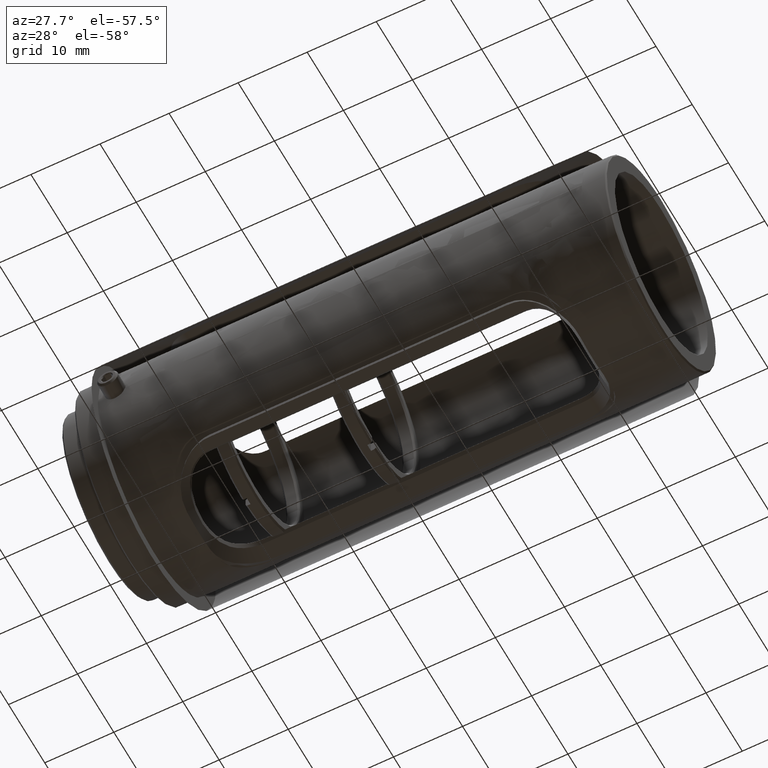
[diagram: clean part render]
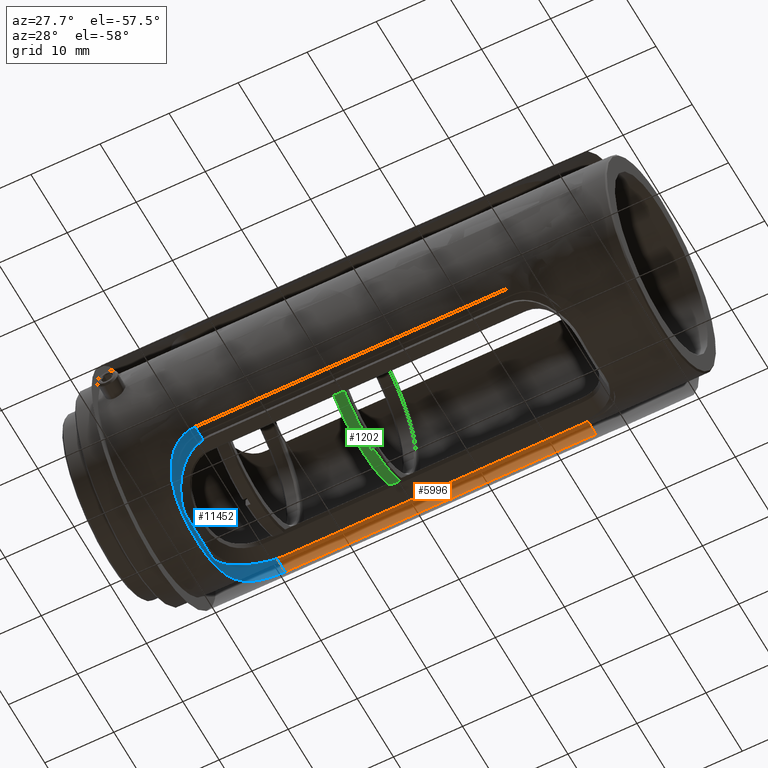
[diagram: same view with three faces highlighted in distinct colors, each labeled with its STEP entity id]
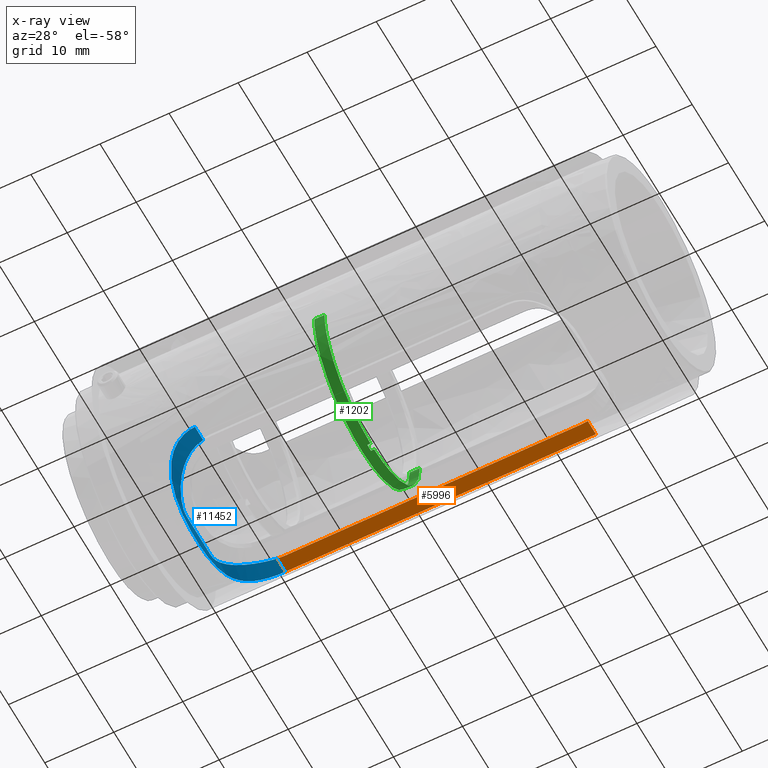
[diagram: x-ray of the same camera — body ghosted, the three highlighted faces saturated]
A machine part, auxiliary view with three faces highlighted in distinct colors.
The next image is the same camera in x-ray (body ghosted, the three faces saturated) — at least one of them is partly hidden behind the body in this view.
Their STEP definitions:

[orange] entity #5996 — the highlighted face is a freeform B-spline surface patch.
#144 = CARTESIAN_POINT ( 'NONE',  ( -36.21715672482449833, 12.44517978978205974, -11.79999999999999893 ) ) ;
#866 = FACE_OUTER_BOUND ( 'NONE', #7115, .T. ) ;
#1026 = VERTEX_POINT ( 'NONE', #8740 ) ;
#1058 = CARTESIAN_POINT ( 'NONE',  ( -81.21715672482450543, 12.44517978978210060, -11.79999999999999893 ) ) ;
#1212 = EDGE_CURVE ( 'NONE', #8710, #12395, #8372, .T. ) ;
#1458 = CARTESIAN_POINT ( 'NONE',  ( -36.21715672482449833, 12.44517978978205974, -11.79999999999999893 ) ) ;
#1842 = ORIENTED_EDGE ( 'NONE', *, *, #11054, .F. ) ;
#1989 = CARTESIAN_POINT ( 'NONE',  ( -36.55143200825091299, 10.22645171149293120, -11.80000000000000249 ) ) ;
#2112 = ORIENTED_EDGE ( 'NONE', *, *, #4413, .F. ) ;
#2153 = CARTESIAN_POINT ( 'NONE',  ( -81.21715672482450543, 12.44517978978210060, -11.79999999999999893 ) ) ;
#2451 = CARTESIAN_POINT ( 'NONE',  ( -80.54891953053115117, 10.24999999999999822, -11.80000000000000071 ) ) ;
#2634 = EDGE_CURVE ( 'NONE', #6201, #12395, #11039, .T. ) ;
#2871 = CARTESIAN_POINT ( 'NONE',  ( -81.21715672482450543, 12.44517978978210060, -11.79999999999999893 ) ) ;
#3113 = CARTESIAN_POINT ( 'NONE',  ( -81.21715672482450543, 10.16460137091849880, -11.79999999999999893 ) ) ;
#3177 = CARTESIAN_POINT ( 'NONE',  ( -36.21715672482449833, 12.44517978978210060, -11.79999999999999893 ) ) ;
#4413 = EDGE_CURVE ( 'NONE', #1026, #6201, #5405, .T. ) ;
#4630 = CARTESIAN_POINT ( 'NONE',  ( -81.21715672482450543, 12.44517978978210060, -11.79999999999999893 ) ) ;
#5020 = CARTESIAN_POINT ( 'NONE',  ( -37.21715672482449122, 10.25000000000000000, -11.79999999999999893 ) ) ;
#5405 =( BOUNDED_CURVE ( )  B_SPLINE_CURVE ( 3, ( #8461, #2451, #11737, #8526 ),
 .UNSPECIFIED., .F., .F. ) 
 B_SPLINE_CURVE_WITH_KNOTS ( ( 4, 4 ),
 ( 0.000000000000000000, 1.000000000000000000 ),
 .UNSPECIFIED. ) 
 CURVE ( )  GEOMETRIC_REPRESENTATION_ITEM ( )  RATIONAL_B_SPLINE_CURVE ( ( 1.000000000000000000, 0.9807464544568985643, 0.9633913773256744806, 0.9479347686063277489 ) ) 
 REPRESENTATION_ITEM ( '' )  );
#5738 = CARTESIAN_POINT ( 'NONE',  ( -37.21715672482449122, 10.25000000000000000, -11.79999999999999893 ) ) ;
#5996 = ADVANCED_FACE ( 'NONE', ( #866 ), #6021, .F. ) ;
#6021 = B_SPLINE_SURFACE_WITH_KNOTS ( 'NONE', 1, 1, ( 
 ( #10139, #3177 ),
 ( #3113, #1058 ) ),
 .UNSPECIFIED., .F., .F., .F.,
 ( 2, 2 ),
 ( 2, 2 ),
 ( 0.000000000000000000, 1.000000000000000000 ),
 ( 0.000000000000000000, 1.000000000000000000 ),
 .UNSPECIFIED. ) ;
#6201 = VERTEX_POINT ( 'NONE', #11399 ) ;
#6217 = ORIENTED_EDGE ( 'NONE', *, *, #1212, .T. ) ;
#6404 = EDGE_CURVE ( 'NONE', #9790, #1026, #10469, .T. ) ;
#7024 = B_SPLINE_CURVE_WITH_KNOTS ( 'NONE', 1,
 ( #144, #13169 ),
 .UNSPECIFIED., .F., .F.,
 ( 2, 2 ),
 ( 0.000000000000000000, 1.000000000000000000 ),
 .UNSPECIFIED. ) ;
#7115 = EDGE_LOOP ( 'NONE', ( #6217, #10742, #2112, #9105, #1842, #11614 ) ) ;
#7991 =( BOUNDED_CURVE ( )  B_SPLINE_CURVE ( 3, ( #7997, #1989, #9071, #12069 ),
 .UNSPECIFIED., .F., .F. ) 
 B_SPLINE_CURVE_WITH_KNOTS ( ( 4, 4 ),
 ( 0.000000000000000000, 1.000000000000000000 ),
 .UNSPECIFIED. ) 
 CURVE ( )  GEOMETRIC_REPRESENTATION_ITEM ( )  RATIONAL_B_SPLINE_CURVE ( ( 0.9479347686063287481, 0.9633913773256752577, 0.9807464544568990084, 1.000000000000000000 ) ) 
 REPRESENTATION_ITEM ( '' )  );
#7997 = CARTESIAN_POINT ( 'NONE',  ( -36.21715672482449833, 10.17820323027549989, -11.79999999999999893 ) ) ;
#8253 = CARTESIAN_POINT ( 'NONE',  ( -36.21715672482449833, 10.17820323027549989, -11.79999999999999893 ) ) ;
#8372 = B_SPLINE_CURVE_WITH_KNOTS ( 'NONE', 1,
 ( #10147, #2871 ),
 .UNSPECIFIED., .F., .F.,
 ( 2, 2 ),
 ( 0.000000000000000000, 1.000000000000000000 ),
 .UNSPECIFIED. ) ;
#8461 = CARTESIAN_POINT ( 'NONE',  ( -80.21715672482450543, 10.25000000000000000, -11.79999999999999893 ) ) ;
#8526 = CARTESIAN_POINT ( 'NONE',  ( -81.21715672482451964, 10.17820323027549989, -11.79999999999999893 ) ) ;
#8710 = VERTEX_POINT ( 'NONE', #1458 ) ;
#8740 = CARTESIAN_POINT ( 'NONE',  ( -80.21715672482450543, 10.25000000000000000, -11.79999999999999893 ) ) ;
#9071 = CARTESIAN_POINT ( 'NONE',  ( -36.88539391911785970, 10.25000000000000178, -11.80000000000000426 ) ) ;
#9105 = ORIENTED_EDGE ( 'NONE', *, *, #6404, .F. ) ;
#9790 = VERTEX_POINT ( 'NONE', #5020 ) ;
#9813 = CARTESIAN_POINT ( 'NONE',  ( -80.21715672482450543, 10.25000000000000000, -11.79999999999999893 ) ) ;
#9822 = EDGE_CURVE ( 'NONE', #8710, #12216, #7024, .T. ) ;
#10139 = CARTESIAN_POINT ( 'NONE',  ( -36.21715672482449833, 10.16460137091849880, -11.79999999999999893 ) ) ;
#10147 = CARTESIAN_POINT ( 'NONE',  ( -36.21715672482449833, 12.44517978978205974, -11.79999999999999893 ) ) ;
#10175 = CARTESIAN_POINT ( 'NONE',  ( -81.21715672482450543, 10.17820323027549989, -11.79999999999999893 ) ) ;
#10469 = B_SPLINE_CURVE_WITH_KNOTS ( 'NONE', 1,
 ( #5738, #9813 ),
 .UNSPECIFIED., .F., .F.,
 ( 2, 2 ),
 ( -1.000000000000000000, 0.000000000000000000 ),
 .UNSPECIFIED. ) ;
#10742 = ORIENTED_EDGE ( 'NONE', *, *, #2634, .F. ) ;
#11039 = B_SPLINE_CURVE_WITH_KNOTS ( 'NONE', 1,
 ( #10175, #2153 ),
 .UNSPECIFIED., .F., .F.,
 ( 2, 2 ),
 ( 0.000000000000000000, 1.000000000000000000 ),
 .UNSPECIFIED. ) ;
#11054 = EDGE_CURVE ( 'NONE', #12216, #9790, #7991, .T. ) ;
#11399 = CARTESIAN_POINT ( 'NONE',  ( -81.21715672482450543, 10.17820323027549989, -11.79999999999999893 ) ) ;
#11614 = ORIENTED_EDGE ( 'NONE', *, *, #9822, .F. ) ;
#11737 = CARTESIAN_POINT ( 'NONE',  ( -80.88288144139809788, 10.22645171149292587, -11.80000000000000071 ) ) ;
#12069 = CARTESIAN_POINT ( 'NONE',  ( -37.21715672482449122, 10.25000000000000000, -11.79999999999999893 ) ) ;
#12216 = VERTEX_POINT ( 'NONE', #8253 ) ;
#12395 = VERTEX_POINT ( 'NONE', #4630 ) ;
#13169 = CARTESIAN_POINT ( 'NONE',  ( -36.21715672482449833, 10.17820323027549989, -11.79999999999999893 ) ) ;

[blue] entity #11452 — the highlighted face is a freeform B-spline surface patch.
#47 = CARTESIAN_POINT ( 'NONE',  ( -87.42626714285084688, 3.480591367619398913, -16.80803232844716177 ) ) ;
#109 = CARTESIAN_POINT ( 'NONE',  ( -86.28131500687852906, -9.434974011198310251, -14.31856798909658579 ) ) ;
#174 = CARTESIAN_POINT ( 'NONE',  ( -86.71913338288911177, -8.367825936568879186, -14.97416389991649233 ) ) ;
#193 = CARTESIAN_POINT ( 'NONE',  ( -83.48635403159664747, -9.434406809563370189, -12.21906396082007795 ) ) ;
#229 = CARTESIAN_POINT ( 'NONE',  ( -87.20807070764260516, 3.674143878268731456, -16.04413009774246035 ) ) ;
#237 = VERTEX_POINT ( 'NONE', #7138 ) ;
#368 = CARTESIAN_POINT ( 'NONE',  ( -83.34942099134946147, -12.07969383274696540, -12.16855732947256286 ) ) ;
#472 = CARTESIAN_POINT ( 'NONE',  ( -87.10166730997441675, 4.536841507067615353, -15.76357009893199290 ) ) ;
#520 = CARTESIAN_POINT ( 'NONE',  ( -84.44153825175318673, 11.54918815413026145, -12.67737609485793548 ) ) ;
#607 = CARTESIAN_POINT ( 'NONE',  ( -86.63403567386856707, 6.071397575224280807, -14.82553087946390669 ) ) ;
#742 = CARTESIAN_POINT ( 'NONE',  ( -82.59170170496324204, 9.831381240548685341, -11.95054098196398762 ) ) ;
#760 = CARTESIAN_POINT ( 'NONE',  ( -86.83754474895204112, -5.527139158911156258, -15.19391951228554483 ) ) ;
#790 = CARTESIAN_POINT ( 'NONE',  ( -87.23548007998601861, -5.841424044008688199, -16.12433833479930101 ) ) ;
#830 = CARTESIAN_POINT ( 'NONE',  ( -86.80248558904882827, -5.626114631176170278, -15.12788101733231905 ) ) ;
#862 = CARTESIAN_POINT ( 'NONE',  ( -86.08046112713401499, 9.804900251752552975, -14.06698408715761950 ) ) ;
#882 = CARTESIAN_POINT ( 'NONE',  ( -83.54081777754177551, 9.408174373513361388, -12.23662559261487459 ) ) ;
#900 = CARTESIAN_POINT ( 'NONE',  ( -86.92940956707909095, -5.242927467897279037, -15.37636648724220478 ) ) ;
#931 = CARTESIAN_POINT ( 'NONE',  ( -87.40517583911311306, -3.822991450647227563, -16.72217837079783109 ) ) ;
#990 = CARTESIAN_POINT ( 'NONE',  ( -87.21478769198890291, -6.005619013832553144, -16.06386865925048468 ) ) ;
#1054 = CARTESIAN_POINT ( 'NONE',  ( -86.24986594374996685, 9.510931209714531320, -14.27071399135604857 ) ) ;
#1133 = CARTESIAN_POINT ( 'NONE',  ( -87.21715672482456227, -3.667647539194525574, -16.07093771137079941 ) ) ;
#1195 = CARTESIAN_POINT ( 'NONE',  ( -83.33872664382477069, -9.511117109790816926, -12.16397661628234417 ) ) ;
#1305 = CARTESIAN_POINT ( 'NONE',  ( -86.23024218559937992, -9.535659835002643803, -14.25164860596770566 ) ) ;
#1330 = ORIENTED_EDGE ( 'NONE', *, *, #11794, .T. ) ;
#1369 = CARTESIAN_POINT ( 'NONE',  ( -84.98032648525379784, -11.14480370818764499, -13.03518354592070949 ) ) ;
#1511 = CARTESIAN_POINT ( 'NONE',  ( -83.18860687102105089, 12.13470875465474741, -12.11362938078550222 ) ) ;
#1695 = CARTESIAN_POINT ( 'NONE',  ( -87.49891348422120529, -12.59452194725940011, -17.22154320737360322 ) ) ;
#1742 = CARTESIAN_POINT ( 'NONE',  ( -83.34300891187363902, 9.510946864294329117, -12.16275562995090453 ) ) ;
#1792 = CARTESIAN_POINT ( 'NONE',  ( -87.24536068359412866, -5.759089647986046501, -16.15395715764145024 ) ) ;
#1813 = CARTESIAN_POINT ( 'NONE',  ( -86.92963985865279142, 5.244692083664443061, -15.37635923235470337 ) ) ;
#1861 = CARTESIAN_POINT ( 'NONE',  ( -86.78424966928326967, 8.139580910049510010, -15.09540619936563743 ) ) ;
#1926 = CARTESIAN_POINT ( 'NONE',  ( -87.45073964435714231, 2.789765670071772341, -16.93654059955659008 ) ) ;
#1946 = CARTESIAN_POINT ( 'NONE',  ( -87.00357639482498939, 4.980844646347112104, -15.53433146427568801 ) ) ;
#1988 = CARTESIAN_POINT ( 'NONE',  ( -87.16850810677767925, 6.338804351344632160, -15.93523535990640916 ) ) ;
#2050 = CARTESIAN_POINT ( 'NONE',  ( -87.27490049962320029, 5.514812186352651580, -16.24252481712527540 ) ) ;
#2116 = CARTESIAN_POINT ( 'NONE',  ( -84.44818406160639768, -11.55401449182634543, -12.67424122604091963 ) ) ;
#2133 = CARTESIAN_POINT ( 'NONE',  ( -81.21715672482450543, -12.44517978978210060, -11.79999999999999893 ) ) ;
#2137 = CARTESIAN_POINT ( 'NONE',  ( -84.07392331290104437, -9.099333018429001996, -12.46657017230550757 ) ) ;
#2153 = CARTESIAN_POINT ( 'NONE',  ( -81.21715672482450543, 12.44517978978210060, -11.79999999999999893 ) ) ;
#2181 = CARTESIAN_POINT ( 'NONE',  ( -81.21715672482450543, -12.44517978978210060, -11.79999999999999893 ) ) ;
#2189 = CARTESIAN_POINT ( 'NONE',  ( -81.21715672482450543, -10.17820323027549989, -11.79999999999999893 ) ) ;
#2201 = CARTESIAN_POINT ( 'NONE',  ( -83.70606656036967763, -9.312854783739252795, -12.30808234958268876 ) ) ;
#2235 = CARTESIAN_POINT ( 'NONE',  ( -87.11455488713710338, 4.465583016021528628, -15.79553309418515283 ) ) ;
#2265 = CARTESIAN_POINT ( 'NONE',  ( -87.09266428894065371, -4.581019532336306099, -15.74149009980706992 ) ) ;
#2298 = CARTESIAN_POINT ( 'NONE',  ( -87.17904301088455554, 4.002998061239174454, -15.96385693268274863 ) ) ;
#2308 = CARTESIAN_POINT ( 'NONE',  ( -86.44252770195170399, -9.092119818126874975, -14.54042170280592750 ) ) ;
#2511 = CARTESIAN_POINT ( 'NONE',  ( -81.91304327793949369, 12.41699518517480172, -11.82857575590087507 ) ) ;
#2517 = VERTEX_POINT ( 'NONE', #2189 ) ;
#2533 = CARTESIAN_POINT ( 'NONE',  ( -87.21715672482450543, 3.459683878185723316, -16.07093771137080296 ) ) ;
#2634 = EDGE_CURVE ( 'NONE', #6201, #12395, #11039, .T. ) ;
#2674 = CARTESIAN_POINT ( 'NONE',  ( -86.77466220562989463, 5.699344135203838313, -15.07808550234351763 ) ) ;
#2718 = CARTESIAN_POINT ( 'NONE',  ( -81.21715672482450543, 12.44517978978210060, -11.79999999999999893 ) ) ;
#2760 = ORIENTED_EDGE ( 'NONE', *, *, #7773, .F. ) ;
#2761 = CARTESIAN_POINT ( 'NONE',  ( -81.43747246725625644, -10.14640339197557140, -11.80000000000000071 ) ) ;
#2787 = CARTESIAN_POINT ( 'NONE',  ( -85.75947727750703109, 10.29981185145696188, -13.71080524552911761 ) ) ;
#2808 = CARTESIAN_POINT ( 'NONE',  ( -81.21715672482450543, 10.17820323027549989, -11.79999999999999893 ) ) ;
#2856 = CARTESIAN_POINT ( 'NONE',  ( -86.90813978228922565, -7.683592683366519793, -15.33273652203092041 ) ) ;
#2895 = CARTESIAN_POINT ( 'NONE',  ( -85.57208414575325151, -7.758370922619335808, -13.52856518389296703 ) ) ;
#2918 = EDGE_LOOP ( 'NONE', ( #9779, #1330, #2760, #7586, #6185, #3978 ) ) ;
#2922 = CARTESIAN_POINT ( 'NONE',  ( -86.84947106889667623, -7.909142134055007212, -15.21742124736911528 ) ) ;
#2940 = CARTESIAN_POINT ( 'NONE',  ( -84.03485835303767715, 9.112438268584611478, -12.45802110448446243 ) ) ;
#2983 = CARTESIAN_POINT ( 'NONE',  ( -86.72596774751913529, 8.330815514579567704, -14.99095364226684879 ) ) ;
#3030 = B_SPLINE_CURVE_WITH_KNOTS ( 'NONE', 1,
 ( #10438, #7288 ),
 .UNSPECIFIED., .F., .F.,
 ( 2, 2 ),
 ( 0.000000000000000000, 1.000000000000000000 ),
 .UNSPECIFIED. ) ;
#3049 = CARTESIAN_POINT ( 'NONE',  ( -86.02943115694408505, 9.890967145180081133, -14.00678082740819974 ) ) ;
#3130 = CARTESIAN_POINT ( 'NONE',  ( -87.09037638531997061, -4.592853992470184110, -15.73591634468008849 ) ) ;
#3163 = CARTESIAN_POINT ( 'NONE',  ( -87.16676380522496004, 4.113810152703641698, -15.93042503393274778 ) ) ;
#3173 = CARTESIAN_POINT ( 'NONE',  ( -86.38045117112322657, -9.231190770126202594, -14.45200434014495272 ) ) ;
#3195 = CARTESIAN_POINT ( 'NONE',  ( -84.88023767057443081, -8.472497401744330858, -12.95961875973739019 ) ) ;
#3206 = B_SPLINE_CURVE_WITH_KNOTS ( 'NONE', 3,
 ( #10628, #2761, #10839, #8628, #7692, #9768, #7828, #11905, #7622, #6827, #10912, #7554, #11630, #9979, #1195, #193, #11414, #12414, #10979, #2201, #6269, #2137, #7899, #3195, #10043, #9346, #7203, #10354, #5267, #2895, #11286, #4819, #8905, #6203, #5970, #4958, #9282, #8268, #4259, #7265, #9043, #12977, #12354, #6957, #830, #760, #13111, #3888, #900, #4130, #3821, #11353, #8205, #7968, #8334, #12284, #12038, #3259, #7331, #3130, #2265, #6329, #10288, #1133, #11046 ),
 .UNSPECIFIED., .F., .F.,
 ( 4, 2, 2, 1, 1, 2, 2, 2, 2, 1, 1, 2, 2, 2, 2, 1, 1, 2, 2, 2, 2, 2, 1, 1, 1, 2, 2, 2, 1, 1, 1, 2, 2, 2, 1, 1, 1, 2, 2, 4 ),
 ( 0.000000000000000000, 0.06250000000004247991, 0.09375000000006186718, 0.1093750000000697636, 0.1171875000000736633, 0.1210937500000755507, 0.1250000000000774103, 0.1875000000000929534, 0.2187500000000991984, 0.2343750000001021128, 0.2421875000001021683, 0.2460937500001020850, 0.2500000000001020295, 0.3750000000001049716, 0.4375000000001076361, 0.4687500000001103007, 0.4843750000001105227, 0.4921875000001094680, 0.5000000000001084688, 0.6250000000000732747, 0.6875000000000565104, 0.7187500000000481837, 0.7343750000000446310, 0.7421875000000429656, 0.7460937500000427436, 0.7480468750000427436, 0.7500000000000426326, 0.7812500000000398570, 0.7968750000000388578, 0.8046875000000385247, 0.8085937500000389688, 0.8105468750000391909, 0.8125000000000394129, 0.8437500000000398570, 0.8593750000000401901, 0.8671875000000398570, 0.8710937500000395239, 0.8730468750000390799, 0.8750000000000386358, 1.000000000000000000 ),
 .UNSPECIFIED. ) ;
#3241 = CARTESIAN_POINT ( 'NONE',  ( -86.11384331653906088, -9.747507569033686536, -14.10707938552816110 ) ) ;
#3259 = CARTESIAN_POINT ( 'NONE',  ( -87.07860356642201793, -4.652372802842472232, -15.70741606340672192 ) ) ;
#3304 = CARTESIAN_POINT ( 'NONE',  ( -85.14396279855081673, -10.99855779644939346, -13.15892535267497365 ) ) ;
#3502 = CARTESIAN_POINT ( 'NONE',  ( -83.23159634422340503, 12.12044213107461665, -12.12785325439014272 ) ) ;
#3663 = CARTESIAN_POINT ( 'NONE',  ( -84.16091969611217394, 9.028190485174016899, -12.52277156184893947 ) ) ;
#3734 = CARTESIAN_POINT ( 'NONE',  ( -86.85563988897308718, 5.473191180653183885, -15.22918095650730841 ) ) ;
#3801 = CARTESIAN_POINT ( 'NONE',  ( -86.76973586083968826, 5.712474223999565837, -15.06918991361318838 ) ) ;
#3821 = CARTESIAN_POINT ( 'NONE',  ( -86.94503889722666656, -5.190219308837373369, -15.40885456937109055 ) ) ;
#3849 = CARTESIAN_POINT ( 'NONE',  ( -86.99735107896567854, -7.299913235736254613, -15.51978179974607741 ) ) ;
#3888 = CARTESIAN_POINT ( 'NONE',  ( -86.90621475703193255, -5.318779580494475745, -15.32887043649840564 ) ) ;
#3914 = CARTESIAN_POINT ( 'NONE',  ( -87.18088316658514714, 6.253645944680305213, -15.96881048913271073 ) ) ;
#3932 = CARTESIAN_POINT ( 'NONE',  ( -85.92122412791812280, 7.310028710795911877, -13.88369003458574724 ) ) ;
#3978 = ORIENTED_EDGE ( 'NONE', *, *, #5270, .T. ) ;
#3982 = CARTESIAN_POINT ( 'NONE',  ( -86.89145912178331344, 7.767090444978562047, -15.29400801150327283 ) ) ;
#4045 = CARTESIAN_POINT ( 'NONE',  ( -86.06012280566750405, 9.839434012082211467, -14.04288079137559464 ) ) ;
#4107 = CARTESIAN_POINT ( 'NONE',  ( -87.48158904134247393, 1.400885106165713268, -17.10744185630767333 ) ) ;
#4130 = CARTESIAN_POINT ( 'NONE',  ( -86.94043443853530562, -5.205897363734912631, -15.39923983861461565 ) ) ;
#4175 = CARTESIAN_POINT ( 'NONE',  ( -83.42708022696859871, -12.05118560415575679, -12.19681216172572569 ) ) ;
#4242 = CARTESIAN_POINT ( 'NONE',  ( -86.61750116265604049, -8.665260588275099707, -14.80291032664325357 ) ) ;
#4259 = CARTESIAN_POINT ( 'NONE',  ( -86.70390712413478695, -5.881967766449240465, -14.95310394495873751 ) ) ;
#4290 = CARTESIAN_POINT ( 'NONE',  ( -81.21715672482440596, 12.59452194725940011, -11.79999999999999893 ) ) ;
#4545 = CARTESIAN_POINT ( 'NONE',  ( -84.51769559168040757, -12.59452194725940188, -11.79999999999999893 ) ) ;
#4630 = CARTESIAN_POINT ( 'NONE',  ( -81.21715672482450543, 12.44517978978210060, -11.79999999999999893 ) ) ;
#4662 = CARTESIAN_POINT ( 'NONE',  ( -85.77239112632926776, 7.509720388492777232, -13.72572063796118869 ) ) ;
#4680 = CARTESIAN_POINT ( 'NONE',  ( -87.01632958969217668, -12.59452194725940188, -13.95647512288158687 ) ) ;
#4729 = CARTESIAN_POINT ( 'NONE',  ( -85.86304966718574860, 7.390194532370302660, -13.82035658833459379 ) ) ;
#4801 = CARTESIAN_POINT ( 'NONE',  ( -81.65784663611628957, 10.11459512054712739, -11.79999999999999893 ) ) ;
#4819 = CARTESIAN_POINT ( 'NONE',  ( -85.86747189853842599, -7.402304500977792578, -13.81089389452775684 ) ) ;
#4849 = CARTESIAN_POINT ( 'NONE',  ( -87.08932331167812890, 6.829401543918430129, -15.73223442091188673 ) ) ;
#4871 = CARTESIAN_POINT ( 'NONE',  ( -86.96087755352370152, 5.136567660965425830, -15.44219823223529708 ) ) ;
#4917 = CARTESIAN_POINT ( 'NONE',  ( -86.87958802753686882, -7.797052440753359015, -15.27551474869743764 ) ) ;
#4937 = CARTESIAN_POINT ( 'NONE',  ( -86.95711837399656474, 5.149709548068727827, -15.43423866336229189 ) ) ;
#4958 = CARTESIAN_POINT ( 'NONE',  ( -86.58487714279866054, -6.160433006198377193, -14.75655693050770800 ) ) ;
#4988 = CARTESIAN_POINT ( 'NONE',  ( -87.13022005987990326, 6.585656714920368415, -15.83493203114460712 ) ) ;
#5014 = CARTESIAN_POINT ( 'NONE',  ( -87.21715672482450543, 3.250000000000000000, -16.07093771137079941 ) ) ;
#5049 = CARTESIAN_POINT ( 'NONE',  ( -87.20424363478319663, -6.085547486240787229, -16.03376243852744665 ) ) ;
#5117 = CARTESIAN_POINT ( 'NONE',  ( -87.23754975449529070, 5.845202472631314095, -16.12631528151035809 ) ) ;
#5267 = CARTESIAN_POINT ( 'NONE',  ( -85.53774848514807161, -7.798820967986773489, -13.49644872793828476 ) ) ;
#5270 = EDGE_CURVE ( 'NONE', #12395, #5537, #9357, .T. ) ;
#5372 = B_SPLINE_CURVE_WITH_KNOTS ( 'NONE', 3,
 ( #11386, #2533, #229, #2298, #3163, #6535, #11322, #2235, #5538, #472, #11753, #5607, #7234, #9682, #6236, #1946, #7948, #10892, #4871, #4937, #10959, #1813, #9749, #3734, #7811, #5950, #12088, #2674, #3801, #8959, #607, #10818, #7879, #12957, #3932, #4729, #4662, #10026, #12822, #11027, #11821, #5878, #13025, #9025, #8745, #3663, #2940, #7005, #8015, #8887, #11954, #6940, #882, #1742, #7740, #8819, #9885, #5807, #13092, #742, #11094, #9959, #6741, #4801, #2808 ),
 .UNSPECIFIED., .F., .F.,
 ( 4, 2, 2, 1, 1, 1, 2, 2, 2, 1, 1, 1, 2, 2, 2, 1, 1, 1, 2, 2, 2, 2, 2, 1, 2, 2, 2, 2, 1, 1, 1, 2, 2, 2, 2, 1, 1, 2, 2, 4 ),
 ( 0.000000000000000000, 0.06250000000002690903, 0.09375000000004035661, 0.1093750000000468098, 0.1171875000000500433, 0.1210937500000520972, 0.1230468750000533046, 0.1250000000000545120, 0.1562500000000626721, 0.1718750000000666411, 0.1796875000000681399, 0.1835937500000688061, 0.1855468750000692224, 0.1875000000000696387, 0.2187500000000850431, 0.2343750000000925371, 0.2421875000000957012, 0.2460937500000972555, 0.2480468750000975053, 0.2500000000000976996, 0.3750000000001012523, 0.4375000000001028067, 0.4687500000001046940, 0.4843750000001064149, 0.4921875000001060818, 0.5000000000001058043, 0.6250000000000847100, 0.6875000000000753841, 0.7187500000000708322, 0.7343750000000683897, 0.7421875000000669464, 0.7460937500000645040, 0.7500000000000620615, 0.8125000000000229816, 0.8437500000000033307, 0.8593749999999936717, 0.8671874999999886757, 0.8710937499999880096, 0.8749999999999873435, 1.000000000000000000 ),
 .UNSPECIFIED. ) ;
#5439 = CARTESIAN_POINT ( 'NONE',  ( -85.22320876774080034, -10.92148665269835739, -13.22266838828115887 ) ) ;
#5537 = VERTEX_POINT ( 'NONE', #6500 ) ;
#5538 = CARTESIAN_POINT ( 'NONE',  ( -87.10561813237869444, 4.515434575410087525, -15.77332010858600242 ) ) ;
#5583 = CARTESIAN_POINT ( 'NONE',  ( -83.58462916236375406, 11.99914376185296483, -12.24851271010843412 ) ) ;
#5607 = CARTESIAN_POINT ( 'NONE',  ( -87.09741602855186215, 4.559563549140192684, -15.75311469332504188 ) ) ;
#5807 = CARTESIAN_POINT ( 'NONE',  ( -82.71751187536841599, 9.784512232645946384, -11.97941553023276917 ) ) ;
#5858 = CARTESIAN_POINT ( 'NONE',  ( -86.79611618429890996, 8.099146315036756860, -15.11714494993484514 ) ) ;
#5878 = CARTESIAN_POINT ( 'NONE',  ( -85.34317095111693163, 8.035968064992600191, -13.30852184494069412 ) ) ;
#5929 = CARTESIAN_POINT ( 'NONE',  ( -87.36320086463781820, -4.506305374342744585, -16.55112646057116521 ) ) ;
#5950 = CARTESIAN_POINT ( 'NONE',  ( -86.79872989561107488, 5.634419778482531171, -15.12192738767372724 ) ) ;
#5970 = CARTESIAN_POINT ( 'NONE',  ( -86.46517083889325761, -6.414779066243693428, -14.57196125451098290 ) ) ;
#5999 = CARTESIAN_POINT ( 'NONE',  ( -87.48793009000681309, -0.7003221510566228769, -17.15004929870681138 ) ) ;
#6059 = CARTESIAN_POINT ( 'NONE',  ( -87.45852847446535350, -2.439666688286137752, -16.97967620582016224 ) ) ;
#6121 = CARTESIAN_POINT ( 'NONE',  ( -85.66731434047615323, 10.42225312550794847, -13.61833323875166002 ) ) ;
#6185 = ORIENTED_EDGE ( 'NONE', *, *, #2634, .T. ) ;
#6201 = VERTEX_POINT ( 'NONE', #11399 ) ;
#6203 = CARTESIAN_POINT ( 'NONE',  ( -86.37792101981901283, -6.582352519244096811, -14.44674853775195622 ) ) ;
#6236 = CARTESIAN_POINT ( 'NONE',  ( -87.02251517026053307, 4.905049595563721887, -15.57683379693877157 ) ) ;
#6250 = CARTESIAN_POINT ( 'NONE',  ( -85.00789393901860080, -11.12088779340108147, -13.05558095778784988 ) ) ;
#6269 = CARTESIAN_POINT ( 'NONE',  ( -83.71958374605900133, -9.305054757855025116, -12.31386294606389242 ) ) ;
#6329 = CARTESIAN_POINT ( 'NONE',  ( -87.09354592516008609, -4.576434723072472899, -15.74364110010009021 ) ) ;
#6372 = CARTESIAN_POINT ( 'NONE',  ( -86.12233505919417098, -9.732559986397822271, -14.11739106882869699 ) ) ;
#6384 = EDGE_CURVE ( 'NONE', #8332, #6201, #5372, .T. ) ;
#6500 = CARTESIAN_POINT ( 'NONE',  ( -81.21715672482450543, -12.44517978978210060, -11.79999999999999893 ) ) ;
#6535 = CARTESIAN_POINT ( 'NONE',  ( -87.14388346604661706, 4.281819335611828592, -15.87033566173235144 ) ) ;
#6584 = CARTESIAN_POINT ( 'NONE',  ( -84.30570491347239681, 11.63321599040297372, -12.59945722186839134 ) ) ;
#6741 = CARTESIAN_POINT ( 'NONE',  ( -82.10445868601708241, 10.00502921974000969, -11.84644897438145961 ) ) ;
#6827 = CARTESIAN_POINT ( 'NONE',  ( -82.51244848316642333, -9.860248664251303197, -11.93349670593641321 ) ) ;
#6853 = CARTESIAN_POINT ( 'NONE',  ( -87.44847186182504117, -2.785919779267219898, -16.92626907868658748 ) ) ;
#6919 = CARTESIAN_POINT ( 'NONE',  ( -84.93581685561137817, 11.18265077307492383, -13.00273269243609242 ) ) ;
#6940 = CARTESIAN_POINT ( 'NONE',  ( -83.74749208604659145, 9.287969386946176797, -12.32590536298720352 ) ) ;
#6957 = CARTESIAN_POINT ( 'NONE',  ( -86.76043490877644615, -5.737078427149484128, -15.05248603504609761 ) ) ;
#6986 = CARTESIAN_POINT ( 'NONE',  ( -84.91944681647760262, 11.19634283863652158, -12.99094015164847526 ) ) ;
#7005 = CARTESIAN_POINT ( 'NONE',  ( -83.88571811121650512, 9.205486288717656507, -12.38760830630582177 ) ) ;
#7047 = CARTESIAN_POINT ( 'NONE',  ( -86.38196086008007057, 9.239026675420101142, -14.44977323837861505 ) ) ;
#7112 = CARTESIAN_POINT ( 'NONE',  ( -84.63779387738347282, 11.41411116473560305, -12.79951603776666502 ) ) ;
#7138 = CARTESIAN_POINT ( 'NONE',  ( -87.21715672482450543, -3.250000000000000000, -16.07093771137079941 ) ) ;
#7203 = CARTESIAN_POINT ( 'NONE',  ( -85.36312259884404341, -7.997192675585944599, -13.33865842446378558 ) ) ;
#7234 = CARTESIAN_POINT ( 'NONE',  ( -87.07851938939415959, 4.659067655747066716, -15.70681708923645914 ) ) ;
#7244 = CARTESIAN_POINT ( 'NONE',  ( -83.88074766433346952, -11.86082792560202748, -12.38334766549734489 ) ) ;
#7265 = CARTESIAN_POINT ( 'NONE',  ( -86.73377340794345969, -5.806368315969520744, -15.00517109412581540 ) ) ;
#7288 = CARTESIAN_POINT ( 'NONE',  ( -87.21715672482450543, -3.250000000000000000, -16.07093771137079941 ) ) ;
#7312 = CARTESIAN_POINT ( 'NONE',  ( -85.04907481054722496, -11.08474775125166367, -13.08631023985259034 ) ) ;
#7331 = CARTESIAN_POINT ( 'NONE',  ( -87.08691247469916163, -4.610639215868059360, -15.72749455719951683 ) ) ;
#7436 = CARTESIAN_POINT ( 'NONE',  ( -82.61514819218220396, -12.33247528604576715, -11.91713152221175065 ) ) ;
#7554 = CARTESIAN_POINT ( 'NONE',  ( -82.74056965435772781, -9.779280593535164101, -11.98202693956458020 ) ) ;
#7586 = ORIENTED_EDGE ( 'NONE', *, *, #6384, .T. ) ;
#7622 = CARTESIAN_POINT ( 'NONE',  ( -82.48516892643581855, -9.869744928923516625, -11.92787504136273924 ) ) ;
#7652 = CARTESIAN_POINT ( 'NONE',  ( -82.98122669892708814, 12.19944526836214926, -12.04886871947309146 ) ) ;
#7659 = B_SPLINE_CURVE_WITH_KNOTS ( 'NONE', 1,
 ( #2133, #9212 ),
 .UNSPECIFIED., .F., .F.,
 ( 2, 2 ),
 ( 0.000000000000000000, 1.000000000000000000 ),
 .UNSPECIFIED. ) ;
#7692 = CARTESIAN_POINT ( 'NONE',  ( -82.10114376716300910, -9.991160273163965044, -11.86084505626135233 ) ) ;
#7740 = CARTESIAN_POINT ( 'NONE',  ( -83.04372993170494510, 9.649563179130629109, -12.06747659380805082 ) ) ;
#7773 = EDGE_CURVE ( 'NONE', #8332, #237, #3030, .T. ) ;
#7811 = CARTESIAN_POINT ( 'NONE',  ( -86.83070123229462922, 5.545788260655293733, -15.18130810676065323 ) ) ;
#7828 = CARTESIAN_POINT ( 'NONE',  ( -82.34848654948821434, -9.915845931063396179, -11.90115815664311860 ) ) ;
#7879 = CARTESIAN_POINT ( 'NONE',  ( -86.19224700667058414, 6.904862345489252817, -14.20084425771965009 ) ) ;
#7899 = CARTESIAN_POINT ( 'NONE',  ( -84.40747577952556924, -8.867816209012012507, -12.64661539897897846 ) ) ;
#7927 = CARTESIAN_POINT ( 'NONE',  ( -86.96325605770945799, -7.454846416479238513, -15.44594949839823350 ) ) ;
#7948 = CARTESIAN_POINT ( 'NONE',  ( -86.97923127632529372, 5.071217105853946805, -15.48138471342578626 ) ) ;
#7968 = CARTESIAN_POINT ( 'NONE',  ( -86.98171904880901195, -5.063700569433432719, -15.48590464916694209 ) ) ;
#7996 = CARTESIAN_POINT ( 'NONE',  ( -85.37921328638473994, 10.77245647427803910, -13.34693733801507243 ) ) ;
#8015 = CARTESIAN_POINT ( 'NONE',  ( -83.81067544400819713, 9.250700033656020338, -12.35369700888028355 ) ) ;
#8059 = CARTESIAN_POINT ( 'NONE',  ( -87.42185302215379750, -3.476630609601785604, -16.79776127762190541 ) ) ;
#8121 = CARTESIAN_POINT ( 'NONE',  ( -86.76118183702661213, 8.216313566111210775, -15.05373568725324063 ) ) ;
#8184 = CARTESIAN_POINT ( 'NONE',  ( -85.95652744169592552, 10.00933857063221133, -13.92295010198501082 ) ) ;
#8205 = CARTESIAN_POINT ( 'NONE',  ( -86.94917081869525077, -5.176074810469398102, -15.41750401968188555 ) ) ;
#8248 = CARTESIAN_POINT ( 'NONE',  ( -85.47882072795549391, -10.65180668165562672, -13.44063087501229425 ) ) ;
#8268 = CARTESIAN_POINT ( 'NONE',  ( -86.67735007661613622, -5.946487369130806222, -14.90808261627831754 ) ) ;
#8316 = CARTESIAN_POINT ( 'NONE',  ( -86.14065831674835749, -9.700002875739484054, -14.13978287893839614 ) ) ;
#8332 = VERTEX_POINT ( 'NONE', #5014 ) ;
#8334 = CARTESIAN_POINT ( 'NONE',  ( -87.00867287372997794, -4.960798077352036373, -15.54532056249132133 ) ) ;
#8588 = CARTESIAN_POINT ( 'NONE',  ( -82.60146226165889516, 12.29721061559374462, -11.95027216262571379 ) ) ;
#8628 = CARTESIAN_POINT ( 'NONE',  ( -81.99075338787058342, -10.02130866943579512, -11.84631840058292340 ) ) ;
#8697 = CARTESIAN_POINT ( 'NONE',  ( -81.21715672482440596, -12.59452194725940011, -11.79999999999999893 ) ) ;
#8745 = CARTESIAN_POINT ( 'NONE',  ( -84.41027940559185083, 8.853705134909807484, -12.65798499177118153 ) ) ;
#8819 = CARTESIAN_POINT ( 'NONE',  ( -82.94354278977938577, 9.693178213853537173, -12.03829951844878288 ) ) ;
#8837 = CARTESIAN_POINT ( 'NONE',  ( -87.01632958969217668, 12.59452194725940188, -13.95647512288158687 ) ) ;
#8865 = CARTESIAN_POINT ( 'NONE',  ( -81.56361349146131090, 12.44517978978210238, -11.80000000000000071 ) ) ;
#8887 = CARTESIAN_POINT ( 'NONE',  ( -83.77841782772199508, 9.269796581816438064, -12.33944239441435364 ) ) ;
#8905 = CARTESIAN_POINT ( 'NONE',  ( -86.09151719483027421, -7.079101117155856215, -14.06792356600551663 ) ) ;
#8936 = CARTESIAN_POINT ( 'NONE',  ( -87.09247373677584392, -6.827806685052916436, -15.73588976650942506 ) ) ;
#8959 = CARTESIAN_POINT ( 'NONE',  ( -86.76679688485938868, 5.720272657492821544, -15.06390024231824576 ) ) ;
#9005 = CARTESIAN_POINT ( 'NONE',  ( -87.05992406161887232, 6.989412068921656562, -15.66187126914604377 ) ) ;
#9025 = CARTESIAN_POINT ( 'NONE',  ( -84.57282915356782382, 8.729395190142977157, -12.75575531270355256 ) ) ;
#9043 = CARTESIAN_POINT ( 'NONE',  ( -86.74843171575315637, -5.768486945558506385, -15.03108627258194474 ) ) ;
#9070 = CARTESIAN_POINT ( 'NONE',  ( -87.29086040005340408, -5.345285467876381702, -16.29644280112072252 ) ) ;
#9133 = CARTESIAN_POINT ( 'NONE',  ( -87.14635229164572650, -6.503326306658187228, -15.87274786768017698 ) ) ;
#9195 = CARTESIAN_POINT ( 'NONE',  ( -87.32194416654851921, 5.013773493975432594, -16.40153621857123056 ) ) ;
#9212 = CARTESIAN_POINT ( 'NONE',  ( -81.21715672482450543, -10.17820323027549989, -11.79999999999999893 ) ) ;
#9259 = CARTESIAN_POINT ( 'NONE',  ( -84.71088466635171699, -11.37334898857642429, -12.83909610033526150 ) ) ;
#9282 = CARTESIAN_POINT ( 'NONE',  ( -86.62291957780642804, -6.075153339425820143, -14.81755539811640965 ) ) ;
#9327 = CARTESIAN_POINT ( 'NONE',  ( -84.02608579328325789, -11.78866769821845573, -12.45283750988504501 ) ) ;
#9346 = CARTESIAN_POINT ( 'NONE',  ( -85.25453189207121341, -8.111036000259797873, -13.24785601746131114 ) ) ;
#9357 = B_SPLINE_CURVE_WITH_KNOTS ( 'NONE', 3,
 ( #2718, #8865, #2511, #10657, #8588, #11932, #7652, #12666, #1511, #3502, #5583, #9659, #6584, #520, #7112, #13139, #11008, #12133, #6986, #6919, #11999, #7996, #6121, #2787, #11074, #8184, #3049, #4045, #862, #11201, #1054, #7047, #10006, #10201, #12196, #2983, #8121, #1861, #5858, #3982, #9938, #9005, #4849, #4988, #13069, #1988, #3914, #5117, #2050, #9195, #13201, #10072, #11140, #47, #1926, #4107, #12068, #5999, #13004, #6059, #6853, #8059, #931, #5929, #10938, #9070, #10134, #1792, #790, #990, #5049, #9133, #8936, #3849, #7927, #2856, #4917, #2922, #10458, #12525, #174, #4242, #2308, #3173, #109, #1305, #12397, #8316, #6372, #3241, #10519, #10267, #8248, #11458, #5439, #3304, #7312, #6250, #1369, #9515, #9259, #2116, #9327, #7244, #11522, #12261, #4175, #368, #10332, #7436, #11396, #2181 ),
 .UNSPECIFIED., .F., .F.,
 ( 4, 2, 2, 1, 2, 2, 2, 2, 1, 1, 2, 2, 2, 2, 1, 1, 2, 2, 2, 2, 1, 2, 2, 2, 2, 2, 2, 2, 2, 2, 2, 2, 2, 2, 2, 2, 2, 2, 2, 2, 2, 1, 2, 2, 2, 2, 1, 1, 2, 2, 2, 2, 1, 1, 2, 2, 2, 2, 1, 2, 2, 4 ),
 ( 0.000000000000000000, 0.03124999999998984840, 0.04687499999998416544, 0.05468749999998132050, 0.05859374999997993966, 0.06249999999997855882, 0.09374999999997528366, 0.1093749999999736877, 0.1171874999999724803, 0.1210937499999722583, 0.1230468749999721612, 0.1249999999999720501, 0.1562499999999706068, 0.1718749999999695521, 0.1796874999999692746, 0.1835937499999691636, 0.1855468749999693856, 0.1874999999999696076, 0.2187499999999679701, 0.2343749999999672207, 0.2421874999999669431, 0.2460937499999669986, 0.2499999999999670264, 0.2812499999999666933, 0.2968749999999667488, 0.3046874999999668043, 0.3124999999999668598, 0.3437499999999670264, 0.3593749999999671374, 0.3749999999999671929, 0.4374999999999676925, 0.4999999999999681366, 0.5624999999999685807, 0.5937499999999688027, 0.6249999999999689138, 0.6562499999999691358, 0.6718749999999691358, 0.6796874999999690248, 0.6874999999999689138, 0.7187499999999682476, 0.7343749999999678035, 0.7421874999999675815, 0.7460937499999674705, 0.7499999999999672484, 0.7812499999999642508, 0.7968749999999626965, 0.8046874999999619194, 0.8085937499999619194, 0.8105468749999615863, 0.8124999999999613642, 0.8437499999999557021, 0.8593749999999531486, 0.8671874999999523714, 0.8710937499999519273, 0.8730468749999522604, 0.8749999999999527045, 0.9062499999999664713, 0.9218749999999739098, 0.9296874999999770184, 0.9335937499999779066, 0.9374999999999789058, 1.000000000000000000 ),
 .UNSPECIFIED. ) ;
#9515 = CARTESIAN_POINT ( 'NONE',  ( -84.96769566724837830, -11.15564748203140510, -13.02590919217524146 ) ) ;
#9564 = FACE_OUTER_BOUND ( 'NONE', #2918, .T. ) ;
#9615 =( BOUNDED_SURFACE ( )  B_SPLINE_SURFACE ( 1, 3, ( 
 ( #4290, #11703, #8837, #11770 ),
 ( #8697, #4545, #4680, #1695 ) ),
 .UNSPECIFIED., .F., .F., .F. ) 
 B_SPLINE_SURFACE_WITH_KNOTS ( ( 2, 2 ),
 ( 4, 4 ),
 ( 0.000000000000000000, 1.000000000000000000 ),
 ( 0.000000000000000000, 1.000000000000000000 ),
 .UNSPECIFIED. ) 
 GEOMETRIC_REPRESENTATION_ITEM ( )  RATIONAL_B_SPLINE_SURFACE ( (
 ( 1.000000000000000000, 0.8380254657005439256, 0.8380254657005439256, 1.000000000000000000),
 ( 1.000000000000000000, 0.8380254657005439256, 0.8380254657005439256, 1.000000000000000000) ) ) 
 REPRESENTATION_ITEM ( '' )  SURFACE ( )  );
#9659 = CARTESIAN_POINT ( 'NONE',  ( -83.88428114206547548, 11.86722902924991629, -12.37855585448212103 ) ) ;
#9682 = CARTESIAN_POINT ( 'NONE',  ( -87.05801565879950488, 4.755682237150715252, -15.65794244294182391 ) ) ;
#9749 = CARTESIAN_POINT ( 'NONE',  ( -86.90247185704538424, 5.332494077210614414, -15.32079570263934976 ) ) ;
#9768 = CARTESIAN_POINT ( 'NONE',  ( -82.26613758251654929, -9.941663135619675629, -11.88699433901427405 ) ) ;
#9779 = ORIENTED_EDGE ( 'NONE', *, *, #10116, .T. ) ;
#9885 = CARTESIAN_POINT ( 'NONE',  ( -82.79291363890652633, 9.754715160604110480, -11.99839955352359766 ) ) ;
#9938 = CARTESIAN_POINT ( 'NONE',  ( -86.96456880605688866, 7.461985560944940588, -15.44544582207130290 ) ) ;
#9959 = CARTESIAN_POINT ( 'NONE',  ( -82.55501225629942041, 9.844645412482718072, -11.94251762306084608 ) ) ;
#9979 = CARTESIAN_POINT ( 'NONE',  ( -83.23968087587007858, -9.559678795464760626, -12.12980140789792571 ) ) ;
#10006 = CARTESIAN_POINT ( 'NONE',  ( -86.55737706611580506, 8.812064734004437128, -14.71261121384240589 ) ) ;
#10026 = CARTESIAN_POINT ( 'NONE',  ( -85.72621298843269244, 7.569302597494235840, -13.67849404997536489 ) ) ;
#10043 = CARTESIAN_POINT ( 'NONE',  ( -85.03324460380476069, -8.332717200464736962, -13.07106027142852867 ) ) ;
#10072 = CARTESIAN_POINT ( 'NONE',  ( -87.36189896666000720, 4.508190415798858375, -16.54778195987486455 ) ) ;
#10116 = EDGE_CURVE ( 'NONE', #5537, #2517, #7659, .T. ) ;
#10134 = CARTESIAN_POINT ( 'NONE',  ( -87.27370089355044058, -5.511375726585963086, -16.24094454755845618 ) ) ;
#10175 = CARTESIAN_POINT ( 'NONE',  ( -81.21715672482450543, 10.17820323027549989, -11.79999999999999893 ) ) ;
#10201 = CARTESIAN_POINT ( 'NONE',  ( -86.61207037790781271, 8.666559896870211332, -14.79928046471338732 ) ) ;
#10267 = CARTESIAN_POINT ( 'NONE',  ( -85.76696869084192087, -10.30093491152064544, -13.71249376363664041 ) ) ;
#10288 = CARTESIAN_POINT ( 'NONE',  ( -87.18287606010161994, -4.107387074327690790, -15.96214380219252149 ) ) ;
#10332 = CARTESIAN_POINT ( 'NONE',  ( -83.31208302662561493, -12.09297821560604191, -12.15536399280255786 ) ) ;
#10354 = CARTESIAN_POINT ( 'NONE',  ( -85.48595692104206023, -7.859120695466519813, -13.44854079039974692 ) ) ;
#10438 = CARTESIAN_POINT ( 'NONE',  ( -87.21715672482450543, 3.250000000000000000, -16.07093771137079941 ) ) ;
#10458 = CARTESIAN_POINT ( 'NONE',  ( -86.82903692283407793, -7.983564137570505537, -15.17850481171323374 ) ) ;
#10519 = CARTESIAN_POINT ( 'NONE',  ( -85.94334225470883837, -10.04430722736088732, -13.90160989656516932 ) ) ;
#10628 = CARTESIAN_POINT ( 'NONE',  ( -81.21715672482450543, -10.17820323027549989, -11.79999999999999893 ) ) ;
#10657 = CARTESIAN_POINT ( 'NONE',  ( -82.43023108787798492, 12.33244137135288554, -11.91449751568688953 ) ) ;
#10818 = CARTESIAN_POINT ( 'NONE',  ( -86.47701118451310265, 6.409409891260605896, -14.57846690899924980 ) ) ;
#10839 = CARTESIAN_POINT ( 'NONE',  ( -81.65913719950418681, -10.10320477197815237, -11.81150118122403647 ) ) ;
#10892 = CARTESIAN_POINT ( 'NONE',  ( -86.96647324423253167, 5.116889560672246873, -15.45407851899706841 ) ) ;
#10912 = CARTESIAN_POINT ( 'NONE',  ( -82.52714465134583577, -9.855077459266755824, -11.93657933239392754 ) ) ;
#10938 = CARTESIAN_POINT ( 'NONE',  ( -87.33784517246556334, -4.844171758419060225, -16.45533914220692040 ) ) ;
#10959 = CARTESIAN_POINT ( 'NONE',  ( -86.95479573093652448, 5.157773295650643242, -15.42933637937973756 ) ) ;
#10979 = CARTESIAN_POINT ( 'NONE',  ( -83.68177399936682548, -9.326767933861152216, -12.29779223764582419 ) ) ;
#11008 = CARTESIAN_POINT ( 'NONE',  ( -84.84299817629106144, 11.25893075863465675, -12.93672414669416426 ) ) ;
#11027 = CARTESIAN_POINT ( 'NONE',  ( -85.64681740946087984, 7.668094241827299484, -13.60015317410051949 ) ) ;
#11039 = B_SPLINE_CURVE_WITH_KNOTS ( 'NONE', 1,
 ( #10175, #2153 ),
 .UNSPECIFIED., .F., .F.,
 ( 2, 2 ),
 ( 0.000000000000000000, 1.000000000000000000 ),
 .UNSPECIFIED. ) ;
#11046 = CARTESIAN_POINT ( 'NONE',  ( -87.21715672482450543, -3.250000000000000000, -16.07093771137079941 ) ) ;
#11074 = CARTESIAN_POINT ( 'NONE',  ( -85.89182573178095481, 10.10758970368904031, -13.85184618780781740 ) ) ;
#11094 = CARTESIAN_POINT ( 'NONE',  ( -82.56653176582389619, 9.840504096784755461, -11.94501385839899754 ) ) ;
#11140 = CARTESIAN_POINT ( 'NONE',  ( -87.37342629973787211, 4.339605259047184305, -16.59282009407469261 ) ) ;
#11201 = CARTESIAN_POINT ( 'NONE',  ( -86.09128715824621736, 9.786296969920773137, -14.07991824472409981 ) ) ;
#11286 = CARTESIAN_POINT ( 'NONE',  ( -85.58979651749568518, -7.737248101411890566, -13.54532497611213238 ) ) ;
#11322 = CARTESIAN_POINT ( 'NONE',  ( -87.13132438784639078, 4.366271688493795544, -15.83780634691663103 ) ) ;
#11353 = CARTESIAN_POINT ( 'NONE',  ( -86.94808200095418727, -5.179809936626456057, -15.41522250773517300 ) ) ;
#11386 = CARTESIAN_POINT ( 'NONE',  ( -87.21715672482450543, 3.250000000000000000, -16.07093771137079941 ) ) ;
#11396 = CARTESIAN_POINT ( 'NONE',  ( -81.91052540247073921, -12.44517978978210770, -11.80000000000000071 ) ) ;
#11399 = CARTESIAN_POINT ( 'NONE',  ( -81.21715672482450543, 10.17820323027549989, -11.79999999999999893 ) ) ;
#11414 = CARTESIAN_POINT ( 'NONE',  ( -83.55993238042596261, -9.395084716520523571, -12.24756330660950887 ) ) ;
#11452 = ADVANCED_FACE ( 'NONE', ( #9564 ), #9615, .F. ) ;
#11458 = CARTESIAN_POINT ( 'NONE',  ( -85.37885501624590745, -10.76308564568318182, -13.35198306997881978 ) ) ;
#11522 = CARTESIAN_POINT ( 'NONE',  ( -83.65653672554945786, -11.95998200455669114, -12.28667763362120446 ) ) ;
#11630 = CARTESIAN_POINT ( 'NONE',  ( -82.94124779896732491, -9.697628309053474283, -12.03497014825740585 ) ) ;
#11703 = CARTESIAN_POINT ( 'NONE',  ( -84.51769559168040757, 12.59452194725940188, -11.79999999999999893 ) ) ;
#11753 = CARTESIAN_POINT ( 'NONE',  ( -87.09900630221990525, 4.551122123202384628, -15.75701900376400033 ) ) ;
#11770 = CARTESIAN_POINT ( 'NONE',  ( -87.49891348422120529, 12.59452194725940011, -17.22154320737360322 ) ) ;
#11794 = EDGE_CURVE ( 'NONE', #2517, #237, #3206, .T. ) ;
#11821 = CARTESIAN_POINT ( 'NONE',  ( -85.63141066510357291, 7.686954166920311415, -13.58519830544843288 ) ) ;
#11905 = CARTESIAN_POINT ( 'NONE',  ( -82.44422108765594714, -9.883855746458815261, -11.91957699774273038 ) ) ;
#11932 = CARTESIAN_POINT ( 'NONE',  ( -82.85516239114009807, 12.23379525522730660, -12.01428128037767351 ) ) ;
#11954 = CARTESIAN_POINT ( 'NONE',  ( -83.75689184560448552, 9.282465220345844870, -12.33000140538491252 ) ) ;
#11999 = CARTESIAN_POINT ( 'NONE',  ( -85.17159495592298413, 10.98309807561426688, -13.17404203651934758 ) ) ;
#12038 = CARTESIAN_POINT ( 'NONE',  ( -87.06106303709569261, -4.736778906308773962, -15.66555206917146315 ) ) ;
#12068 = CARTESIAN_POINT ( 'NONE',  ( -87.48791435413137663, 0.7026437291435292387, -17.14995062272577897 ) ) ;
#12088 = CARTESIAN_POINT ( 'NONE',  ( -86.78199678588379129, 5.679719268519011877, -15.09136749865017713 ) ) ;
#12133 = CARTESIAN_POINT ( 'NONE',  ( -84.88896444659019380, 11.22149094707310013, -12.96920097899876900 ) ) ;
#12196 = CARTESIAN_POINT ( 'NONE',  ( -86.68887436084767728, 8.443526356175370395, -14.92737920416820785 ) ) ;
#12261 = CARTESIAN_POINT ( 'NONE',  ( -83.54288368571918966, -12.00728747850386213, -12.24023242859909111 ) ) ;
#12284 = CARTESIAN_POINT ( 'NONE',  ( -87.04438715827548378, -4.810736588452733109, -15.62675525478275596 ) ) ;
#12354 = CARTESIAN_POINT ( 'NONE',  ( -86.75879163667005400, -5.741395776981374155, -15.04954835515553135 ) ) ;
#12395 = VERTEX_POINT ( 'NONE', #4630 ) ;
#12397 = CARTESIAN_POINT ( 'NONE',  ( -86.16794566025336621, -9.651016485160502256, -14.17336337952564485 ) ) ;
#12414 = CARTESIAN_POINT ( 'NONE',  ( -83.64529772533475693, -9.347516791177852724, -12.28247512867504732 ) ) ;
#12525 = CARTESIAN_POINT ( 'NONE',  ( -86.81918072135474063, -8.018742392618692705, -15.15995370231365946 ) ) ;
#12666 = CARTESIAN_POINT ( 'NONE',  ( -83.10586149165924041, 12.16113182147409333, -12.08722998661584569 ) ) ;
#12822 = CARTESIAN_POINT ( 'NONE',  ( -85.67874797685475130, 7.628613727906029318, -13.63146003448372490 ) ) ;
#12957 = CARTESIAN_POINT ( 'NONE',  ( -86.08913455943960003, 7.068085493594502111, -14.07385778040304203 ) ) ;
#12977 = CARTESIAN_POINT ( 'NONE',  ( -86.75465542632676375, -5.752234577131403626, -15.04216698822717113 ) ) ;
#13004 = CARTESIAN_POINT ( 'NONE',  ( -87.48162264253345199, -1.398214387901527855, -17.10765496709905165 ) ) ;
#13025 = CARTESIAN_POINT ( 'NONE',  ( -85.04639455897263645, 8.332506222070406920, -13.07032575932820606 ) ) ;
#13069 = CARTESIAN_POINT ( 'NONE',  ( -87.14331845761289230, 6.503786931672142835, -15.86869055160878794 ) ) ;
#13092 = CARTESIAN_POINT ( 'NONE',  ( -82.62945353721575259, 9.817575531027898705, -11.95895144498288865 ) ) ;
#13111 = CARTESIAN_POINT ( 'NONE',  ( -86.88429864605049602, -5.386867512901978294, -15.28518398625948116 ) ) ;
#13139 = CARTESIAN_POINT ( 'NONE',  ( -84.73405149891824806, 11.34431386129187125, -12.86190068724320490 ) ) ;
#13201 = CARTESIAN_POINT ( 'NONE',  ( -87.33612238757491752, 4.845851719356486065, -16.45199555807956315 ) ) ;

[green] entity #1202 — the highlighted face is a freeform B-spline surface patch.
#305 = CARTESIAN_POINT ( 'NONE',  ( -63.57881934894371767, 13.13789011618393943, -0.5870577373776983965 ) ) ;
#342 = CARTESIAN_POINT ( 'NONE',  ( -62.07852107533700092, -0.4999999999999920064, -13.13498687665881981 ) ) ;
#557 = CARTESIAN_POINT ( 'NONE',  ( -63.58305582868878503, -3.059306385610231160, -12.78890301155221998 ) ) ;
#574 = CARTESIAN_POINT ( 'NONE',  ( -63.58197088340453007, 12.90203293214998936, -2.495078270876303517 ) ) ;
#622 = CARTESIAN_POINT ( 'NONE',  ( -63.58206314664295888, -2.543191745791254288, -12.89251906368903278 ) ) ;
#641 = CARTESIAN_POINT ( 'NONE',  ( -63.58484736639061197, 12.30287907313242179, -4.610880192024702673 ) ) ;
#688 = CARTESIAN_POINT ( 'NONE',  ( -63.58448905010537544, -4.127759774776329493, -12.47512883207435586 ) ) ;
#701 = VERTEX_POINT ( 'NONE', #4896 ) ;
#710 = CARTESIAN_POINT ( 'NONE',  ( -63.57867022962095405, 9.515272163913902403, -9.068631712621066043 ) ) ;
#734 = CARTESIAN_POINT ( 'NONE',  ( -62.07852107533700092, 0.5000000000000079936, -13.13498687665881981 ) ) ;
#756 = CARTESIAN_POINT ( 'NONE',  ( -63.57852107643117989, -9.285509529852500776, -9.303620639213219690 ) ) ;
#775 = CARTESIAN_POINT ( 'NONE',  ( -63.58202615305763317, 7.334424413918380736, -10.90376369666503464 ) ) ;
#792 = CARTESIAN_POINT ( 'NONE',  ( -62.07852107533700092, 0.5000000000000079936, -13.13498687665881981 ) ) ;
#827 = CARTESIAN_POINT ( 'NONE',  ( -63.58159468446297780, -10.77292687174768204, -7.526711199818681308 ) ) ;
#847 = CARTESIAN_POINT ( 'NONE',  ( -63.58495188076896909, 5.190718875733061566, -12.06954174624281251 ) ) ;
#917 = CARTESIAN_POINT ( 'NONE',  ( -63.58317529736994089, 11.25379241707234357, -6.783900689492589287 ) ) ;
#1066 = CARTESIAN_POINT ( 'NONE',  ( -62.07852107533700092, 13.14450000000000074, 2.368918009928039525E-15 ) ) ;
#1070 = ORIENTED_EDGE ( 'NONE', *, *, #6892, .T. ) ;
#1202 = ADVANCED_FACE ( 'NONE', ( #12147 ), #9916, .T. ) ;
#1213 = VERTEX_POINT ( 'NONE', #1066 ) ;
#1413 = CARTESIAN_POINT ( 'NONE',  ( -63.58001244337057045, -13.07181585962809756, -1.430056080874624547 ) ) ;
#1477 = CARTESIAN_POINT ( 'NONE',  ( -63.58495374767855424, -12.07636054646114232, -5.174361150613319360 ) ) ;
#1548 = CARTESIAN_POINT ( 'NONE',  ( -63.58495188064068770, -4.861492801605917791, -12.20587776802547531 ) ) ;
#1619 = CARTESIAN_POINT ( 'NONE',  ( -63.57852690589936628, -9.250962924156629796, -9.337968555903575663 ) ) ;
#1638 = CARTESIAN_POINT ( 'NONE',  ( -63.58377243642576815, 12.66617819974510617, -3.520835338328865749 ) ) ;
#1691 = CARTESIAN_POINT ( 'NONE',  ( -63.57852109443511068, 0.2237109116540519360, -13.14449998090186789 ) ) ;
#1709 = CARTESIAN_POINT ( 'NONE',  ( -63.58266768797903268, 11.09531848132285425, -7.040347343919620471 ) ) ;
#1758 = CARTESIAN_POINT ( 'NONE',  ( -63.58230610883553169, -7.209558383314390362, -10.98646370051273635 ) ) ;
#1778 = CARTESIAN_POINT ( 'NONE',  ( -63.57852105494868056, 9.125567037199260767, -9.463563162247325522 ) ) ;
#1826 = CARTESIAN_POINT ( 'NONE',  ( -63.58090728328999575, 1.942264751133544243, -13.01318686066695740 ) ) ;
#1847 = CARTESIAN_POINT ( 'NONE',  ( -63.58489215724791421, 12.26943843479285334, -4.698891975906365204 ) ) ;
#1914 = CARTESIAN_POINT ( 'NONE',  ( -63.58090728167132966, 10.57510022966262575, -7.828325627925640795 ) ) ;
#2478 = CARTESIAN_POINT ( 'NONE',  ( -63.58496588263097493, -12.12068190240406373, -5.069327452994405903 ) ) ;
#2548 = CARTESIAN_POINT ( 'NONE',  ( -63.58208542939770780, -2.554793164519476800, -12.89020109270473036 ) ) ;
#2620 = CARTESIAN_POINT ( 'NONE',  ( -63.58008698769972256, -10.24925002424155096, -8.231788927412264201 ) ) ;
#2641 = CARTESIAN_POINT ( 'NONE',  ( -63.57881931836123357, 8.888638526515187266, -9.692491855661208078 ) ) ;
#2688 = CARTESIAN_POINT ( 'NONE',  ( -63.58159468381047219, -2.295987797946475784, -12.93969447719286059 ) ) ;
#2707 = CARTESIAN_POINT ( 'NONE',  ( -63.58448905051583466, 5.897384906681920391, -11.74259046424978692 ) ) ;
#2758 = CARTESIAN_POINT ( 'NONE',  ( -63.58001247201945461, 1.410644354050226257, -13.07418356267899817 ) ) ;
#2775 = CARTESIAN_POINT ( 'NONE',  ( -63.58202615431944338, 12.89634374780097659, -2.523917992259539833 ) ) ;
#2823 = CARTESIAN_POINT ( 'NONE',  ( -63.57889394542530681, -8.866646375177348105, -9.704538053841433864 ) ) ;
#2844 = CARTESIAN_POINT ( 'NONE',  ( -63.58139194733318789, 7.616655974241348659, -10.70953840406723856 ) ) ;
#2860 = EDGE_LOOP ( 'NONE', ( #1070, #4612, #10678, #10184, #12191, #8915, #12351, #5737 ) ) ;
#2909 = CARTESIAN_POINT ( 'NONE',  ( -63.58206314723749131, 12.89251801600192948, -2.543197014396514799 ) ) ;
#2970 = CARTESIAN_POINT ( 'NONE',  ( -63.58250532731456417, 2.777521053432988385, -12.84388204219214380 ) ) ;
#2971 = CARTESIAN_POINT ( 'NONE',  ( -62.07852107533700803, 8.981448079271856955, -12.81212975624772987 ) ) ;
#3033 =( BOUNDED_CURVE ( )  B_SPLINE_CURVE ( 1, ( #12072, #10205 ),
 .UNSPECIFIED., .F., .F. ) 
 B_SPLINE_CURVE_WITH_KNOTS ( ( 2, 2 ),
 ( 0.000000000000000000, 1.000000000000000000 ),
 .UNSPECIFIED. ) 
 CURVE ( )  GEOMETRIC_REPRESENTATION_ITEM ( )  RATIONAL_B_SPLINE_CURVE ( ( 0.5001809990314078913, 0.5001809990314078913 ) ) 
 REPRESENTATION_ITEM ( '' )  );
#3348 = CARTESIAN_POINT ( 'NONE',  ( -63.58371276327559940, -12.66427536182137636, -3.509079714872138211 ) ) ;
#3449 = B_SPLINE_CURVE_WITH_KNOTS ( 'NONE', 3,
 ( #6374, #12723, #305, #11719, #3560, #7639, #6639, #9714, #5637, #10521, #574, #2775, #2909, #6973, #10928, #1638, #6841, #11986, #641, #1847, #3902, #6776, #13127, #7983, #8783, #7915, #3696, #11061, #11784, #917, #10855, #1709, #5773, #7707, #12858, #8921, #9848, #7775, #1914, #12053, #10058, #9923, #710, #3836, #5985, #4975, #12992, #4766, #4696, #1778, #2641, #11853, #8853, #12926, #9058, #2844, #5845, #6706, #6906, #775, #10994, #10782, #3767, #4836, #2707, #5913, #5705, #9994, #847, #4905, #7844, #9781, #8993, #13057, #11920, #11125, #2970, #3965, #8045, #12119, #7034, #6757, #1826, #2758, #4886, #1691, #4677, #11835, #8693, #9764, #5753, #7895, #4745, #2688, #10834, #6687, #9828, #622, #2548, #557, #8974, #688, #6887, #7825, #11766, #1548, #8764, #3540, #12836, #8833, #10908, #12907, #6823, #8901, #1758, #10975, #3678, #3748, #12973, #4816, #5893, #5686, #2823, #11901, #7688, #10765, #5825, #1619, #9900, #756, #3817, #7618, #9975, #2620, #11968, #12772, #4609, #827, #11699, #6621, #10694, #7754, #5620, #3612, #9698, #8492, #12703, #9559, #10623, #1477, #11508, #2478, #8426, #6420, #4539, #7483, #3348, #3537, #10563, #7615, #7550, #11696, #5683, #6549, #5484, #12633, #9500, #1413, #5549, #8690, #9624 ),
 .UNSPECIFIED., .F., .F.,
 ( 4, 2, 2, 2, 1, 1, 1, 2, 2, 2, 2, 2, 1, 2, 2, 2, 2, 2, 1, 1, 1, 2, 2, 2, 2, 2, 1, 2, 2, 2, 2, 2, 1, 1, 1, 2, 2, 2, 2, 2, 2, 2, 2, 1, 1, 1, 1, 2, 2, 2, 2, 2, 2, 2, 1, 1, 1, 2, 2, 2, 2, 2, 2, 2, 2, 1, 1, 1, 1, 2, 2, 2, 2, 2, 1, 2, 2, 2, 2, 2, 1, 1, 1, 2, 2, 2, 2, 1, 1, 2, 2, 2, 2, 2, 1, 1, 1, 2, 2, 2, 4 ),
 ( 0.000000000000000000, 0.03125000000000345557, 0.04687500000000519029, 0.05468750000000607153, 0.05859375000000652256, 0.06054687500000674460, 0.06152343750000686257, 0.06201171875000693196, 0.06250000000000700828, 0.09375000000001247613, 0.1093750000000152656, 0.1171875000000166533, 0.1210937500000173472, 0.1230468750000176525, 0.1250000000000179579, 0.1562500000000223987, 0.1718750000000246470, 0.1796875000000258404, 0.1835937500000264511, 0.1855468750000267286, 0.1865234375000268396, 0.1870117187500268674, 0.1875000000000268952, 0.2187500000000277001, 0.2343750000000280331, 0.2421875000000281442, 0.2460937500000281164, 0.2480468750000281164, 0.2500000000000280886, 0.2812500000000284217, 0.2968750000000284772, 0.3046875000000285327, 0.3085937500000285882, 0.3105468750000285882, 0.3115234375000285327, 0.3120117187500285327, 0.3125000000000284772, 0.3437500000000286438, 0.3593750000000286993, 0.3671875000000286438, 0.3750000000000286438, 0.4062500000000286438, 0.4218750000000286438, 0.4296875000000286438, 0.4335937500000286993, 0.4355468750000286993, 0.4365234375000286993, 0.4370117187500286993, 0.4375000000000286438, 0.4687500000000291989, 0.5000000000000296430, 0.5312500000000301981, 0.5468750000000305311, 0.5546875000000305311, 0.5585937500000306422, 0.5605468750000306422, 0.5615234375000306422, 0.5620117187500307532, 0.5625000000000307532, 0.5937500000000313083, 0.6093750000000316414, 0.6171875000000317524, 0.6250000000000317524, 0.6562500000000321965, 0.6718750000000323075, 0.6796875000000325295, 0.6835937500000326406, 0.6855468750000326406, 0.6865234375000326406, 0.6870117187500325295, 0.6875000000000325295, 0.7187500000000308642, 0.7343750000000299760, 0.7421875000000295319, 0.7460937500000293099, 0.7480468750000293099, 0.7500000000000293099, 0.7812500000000279776, 0.7968750000000274225, 0.8046875000000269784, 0.8085937500000268674, 0.8105468750000267564, 0.8115234375000266454, 0.8120117187500266454, 0.8125000000000265343, 0.8437500000000226485, 0.8593750000000207612, 0.8671875000000197620, 0.8710937500000192069, 0.8730468750000189848, 0.8750000000000186517, 0.9062500000000142109, 0.9218750000000118794, 0.9296875000000107692, 0.9335937500000102141, 0.9355468750000099920, 0.9365234375000098810, 0.9370117187500097700, 0.9375000000000097700, 0.9687500000000048850, 1.000000000000000000 ),
 .UNSPECIFIED. ) ;
#3537 = CARTESIAN_POINT ( 'NONE',  ( -63.58317529635261423, -12.75346934602035631, -3.165215431388857414 ) ) ;
#3540 = CARTESIAN_POINT ( 'NONE',  ( -63.58496683378010772, -5.349356396449931772, -12.00475146870270393 ) ) ;
#3560 = CARTESIAN_POINT ( 'NONE',  ( -63.58008701177228517, 13.06499953827174743, -1.452716651324960750 ) ) ;
#3612 = CARTESIAN_POINT ( 'NONE',  ( -63.58305582843984638, -11.20637583488041855, -6.879864500302558916 ) ) ;
#3614 = CARTESIAN_POINT ( 'NONE',  ( -62.52852107533700377, 0.5000000000000089928, -13.13498687665881981 ) ) ;
#3678 = CARTESIAN_POINT ( 'NONE',  ( -63.58215978591653794, -7.275300024722714198, -10.94313974078207075 ) ) ;
#3696 = CARTESIAN_POINT ( 'NONE',  ( -63.58472797102597696, 11.83716883208481008, -5.716639329668790737 ) ) ;
#3748 = CARTESIAN_POINT ( 'NONE',  ( -63.58213015974737914, -7.288468546445427521, -10.93440911577421559 ) ) ;
#3767 = CARTESIAN_POINT ( 'NONE',  ( -63.58305582896238661, 6.879863035611580635, -11.20637681310983425 ) ) ;
#3817 = CARTESIAN_POINT ( 'NONE',  ( -63.57852105782969687, -9.439453972571888229, -9.149676222800321668 ) ) ;
#3836 = CARTESIAN_POINT ( 'NONE',  ( -63.57861430058833463, 9.464357496030427086, -9.121718210293741080 ) ) ;
#3902 = CARTESIAN_POINT ( 'NONE',  ( -63.58493695005172697, 12.21971839381504310, -4.825951234570291071 ) ) ;
#3965 = CARTESIAN_POINT ( 'NONE',  ( -63.58230610890026924, 2.670631329178752456, -12.86653964368376357 ) ) ;
#4044 = CARTESIAN_POINT ( 'NONE',  ( -62.07852107533700092, 13.14450000000000074, 2.368918009928039525E-15 ) ) ;
#4222 = CARTESIAN_POINT ( 'NONE',  ( -62.07852107533702934, -8.981448079271853402, -12.81212975624773520 ) ) ;
#4406 = CARTESIAN_POINT ( 'NONE',  ( -62.07852107533700092, -13.14450000000000074, -1.275965225184123859E-15 ) ) ;
#4448 = CARTESIAN_POINT ( 'NONE',  ( -62.52852107533701798, -0.1667471203886500553, -13.14767257184608695 ) ) ;
#4539 = CARTESIAN_POINT ( 'NONE',  ( -63.58472796949995853, -12.40520181906794406, -4.349047146923266993 ) ) ;
#4609 = CARTESIAN_POINT ( 'NONE',  ( -63.58139194895377955, -10.70819493781796261, -7.618554444287915395 ) ) ;
#4612 = ORIENTED_EDGE ( 'NONE', *, *, #8854, .T. ) ;
#4677 = CARTESIAN_POINT ( 'NONE',  ( -63.57852105623884853, -0.2237109116540514087, -13.14450001909815313 ) ) ;
#4696 = CARTESIAN_POINT ( 'NONE',  ( -63.57852107661127405, 9.305127463313271008, -9.284002705497798047 ) ) ;
#4745 = CARTESIAN_POINT ( 'NONE',  ( -63.58139194805890781, -2.185942990555466814, -12.95875698369775009 ) ) ;
#4766 = CARTESIAN_POINT ( 'NONE',  ( -63.57852224261918650, 9.312995639043840868, -9.276106443019994430 ) ) ;
#4816 = CARTESIAN_POINT ( 'NONE',  ( -63.58090728461246499, -7.828322767782537994, -10.57510213756846795 ) ) ;
#4836 = CARTESIAN_POINT ( 'NONE',  ( -63.58377243573008997, 6.471319735414367891, -11.44325560411212805 ) ) ;
#4851 = CARTESIAN_POINT ( 'NONE',  ( -63.57852107533700092, 13.14450000000000074, 7.752704728192010156E-16 ) ) ;
#4886 = CARTESIAN_POINT ( 'NONE',  ( -63.57881937759260182, 0.5517005913497012859, -13.13967971093100040 ) ) ;
#4896 = CARTESIAN_POINT ( 'NONE',  ( -62.52852107533700377, -0.4999999999999929501, -13.13498687665881981 ) ) ;
#4903 =( BOUNDED_CURVE ( )  B_SPLINE_CURVE ( 1, ( #734, #7126 ),
 .UNSPECIFIED., .F., .T. ) 
 B_SPLINE_CURVE_WITH_KNOTS ( ( 2, 2 ),
 ( 0.000000000000000000, 1.000000000000000000 ),
 .UNSPECIFIED. ) 
 CURVE ( )  GEOMETRIC_REPRESENTATION_ITEM ( )  RATIONAL_B_SPLINE_CURVE ( ( 0.5001809990314080023, 0.5001809990314080023 ) ) 
 REPRESENTATION_ITEM ( '' )  );
#4905 = CARTESIAN_POINT ( 'NONE',  ( -63.58496681367946479, 5.109577984031761666, -12.10407096084744616 ) ) ;
#4933 = EDGE_CURVE ( 'NONE', #10483, #6267, #3449, .T. ) ;
#4975 = CARTESIAN_POINT ( 'NONE',  ( -63.57853739434458618, 9.362381608453706150, -9.226306921840022213 ) ) ;
#5001 = CARTESIAN_POINT ( 'NONE',  ( -61.92852107533701655, -13.14450000000001317, -26.28900000000002635 ) ) ;
#5459 = CARTESIAN_POINT ( 'NONE',  ( -62.52852107533701798, 0.1667471203886600750, -13.14767257184608695 ) ) ;
#5484 = CARTESIAN_POINT ( 'NONE',  ( -63.58213015973296223, -12.88552012344788089, -2.578070528947849382 ) ) ;
#5549 = CARTESIAN_POINT ( 'NONE',  ( -63.57881934894370346, -13.13789029334249570, -0.5870536830175874243 ) ) ;
#5620 = CARTESIAN_POINT ( 'NONE',  ( -63.58208542940165131, -10.92126018247548558, -7.308237020663234773 ) ) ;
#5637 = CARTESIAN_POINT ( 'NONE',  ( -63.58159469164373689, 12.93950127829223007, -2.297043491019888251 ) ) ;
#5683 = CARTESIAN_POINT ( 'NONE',  ( -63.58220405015973853, -12.87765597750934887, -2.616769835154522106 ) ) ;
#5686 = CARTESIAN_POINT ( 'NONE',  ( -63.57911765318306863, -8.726507713382552822, -9.831369370977933286 ) ) ;
#5705 = CARTESIAN_POINT ( 'NONE',  ( -63.58484736592683362, 5.446685187054298716, -11.95636937174865899 ) ) ;
#5737 = ORIENTED_EDGE ( 'NONE', *, *, #9434, .F. ) ;
#5753 = CARTESIAN_POINT ( 'NONE',  ( -63.58075810828920993, -1.832107033172477806, -13.01461503596419789 ) ) ;
#5773 = CARTESIAN_POINT ( 'NONE',  ( -63.58250532741674732, 11.04591915421297443, -7.118116468237748684 ) ) ;
#5825 = CARTESIAN_POINT ( 'NONE',  ( -63.57853739555095984, -9.216835179164366565, -9.371725939115471249 ) ) ;
#5842 =( BOUNDED_CURVE ( )  B_SPLINE_CURVE ( 3, ( #342, #4222, #11309, #4406 ),
 .UNSPECIFIED., .F., .F. ) 
 B_SPLINE_CURVE_WITH_KNOTS ( ( 4, 4 ),
 ( 0.000000000000000000, 1.000000000000000000 ),
 .UNSPECIFIED. ) 
 CURVE ( )  GEOMETRIC_REPRESENTATION_ITEM ( )  RATIONAL_B_SPLINE_CURVE ( ( 0.5001809990314078913, 0.5064024152379077437, 0.6730087488941051133, 1.000000000000000000 ) ) 
 REPRESENTATION_ITEM ( '' )  );
#5845 = CARTESIAN_POINT ( 'NONE',  ( -63.58159468328130970, 7.525831300928862433, -10.77353455114329783 ) ) ;
#5893 = CARTESIAN_POINT ( 'NONE',  ( -63.58001247400319045, -8.240166501705449065, -10.24795515000808344 ) ) ;
#5913 = CARTESIAN_POINT ( 'NONE',  ( -63.58466820621681848, 5.712499358995097865, -11.83308184010896724 ) ) ;
#5985 = CARTESIAN_POINT ( 'NONE',  ( -63.57855836937068261, 9.395176326650345189, -9.192858953276832779 ) ) ;
#5986 = CARTESIAN_POINT ( 'NONE',  ( -62.07852107533700092, 13.14450000000000074, 2.368918009928039525E-15 ) ) ;
#6072 = CARTESIAN_POINT ( 'NONE',  ( -63.72852107533699950, -13.14450000000000074, -2.053168384954409925E-29 ) ) ;
#6088 = EDGE_CURVE ( 'NONE', #701, #11011, #3033, .T. ) ;
#6267 = VERTEX_POINT ( 'NONE', #8509 ) ;
#6374 = CARTESIAN_POINT ( 'NONE',  ( -63.57852107533700092, 13.14450000000000074, 7.752704728192010156E-16 ) ) ;
#6420 = CARTESIAN_POINT ( 'NONE',  ( -63.58496683331701860, -12.26722341119008242, -4.715693074364739168 ) ) ;
#6549 = CARTESIAN_POINT ( 'NONE',  ( -63.58215978588789596, -12.88238105643909215, -2.593560524346214535 ) ) ;
#6621 = CARTESIAN_POINT ( 'NONE',  ( -63.58197088151958098, -10.88734088131555211, -7.358918527551643329 ) ) ;
#6639 = CARTESIAN_POINT ( 'NONE',  ( -63.58100047469280014, 12.99349430382552306, -1.975469148147782406 ) ) ;
#6687 = CARTESIAN_POINT ( 'NONE',  ( -63.58197088134827624, -2.495008243799571535, -12.90204657631624308 ) ) ;
#6706 = CARTESIAN_POINT ( 'NONE',  ( -63.58184344285061940, 7.415292522267118436, -10.84926796987627995 ) ) ;
#6757 = CARTESIAN_POINT ( 'NONE',  ( -63.58211900041960263, 2.572246940058173337, -12.88669665756231630 ) ) ;
#6776 = CARTESIAN_POINT ( 'NONE',  ( -63.58495374808317990, 12.19496847982871834, -4.888241698743456709 ) ) ;
#6823 = CARTESIAN_POINT ( 'NONE',  ( -63.58288416830443168, -6.935628201336352383, -11.16183413301603267 ) ) ;
#6841 = CARTESIAN_POINT ( 'NONE',  ( -63.58448905121154127, 12.47045380200450104, -4.141971745327393428 ) ) ;
#6887 = CARTESIAN_POINT ( 'NONE',  ( -63.58466820584053636, -4.322180676522457077, -12.40860507736784157 ) ) ;
#6892 = EDGE_CURVE ( 'NONE', #1213, #10379, #8485, .T. ) ;
#6906 = CARTESIAN_POINT ( 'NONE',  ( -63.58197088120937224, 7.358860601354624720, -10.88737991757894896 ) ) ;
#6973 = CARTESIAN_POINT ( 'NONE',  ( -63.58208542938620411, 12.89020109895360022, -2.554793133149168671 ) ) ;
#7034 = CARTESIAN_POINT ( 'NONE',  ( -63.58213015975687199, 2.578068513622738145, -12.88552052409201032 ) ) ;
#7035 = CARTESIAN_POINT ( 'NONE',  ( -62.07852107533700092, 0.5000000000000079936, -13.13498687665881981 ) ) ;
#7062 = CARTESIAN_POINT ( 'NONE',  ( -61.92852107533701655, 13.14450000000001317, -26.28900000000002635 ) ) ;
#7126 = CARTESIAN_POINT ( 'NONE',  ( -62.52852107533700377, 0.5000000000000089928, -13.13498687665881981 ) ) ;
#7179 = CARTESIAN_POINT ( 'NONE',  ( -63.57852107533700092, -13.14450000000000074, 2.959801975037559944E-17 ) ) ;
#7483 = CARTESIAN_POINT ( 'NONE',  ( -63.58401135471421384, -12.60092801718744759, -3.727910128349659402 ) ) ;
#7550 = CARTESIAN_POINT ( 'NONE',  ( -63.58250532699948110, -12.84378927503308887, -2.777959323170182682 ) ) ;
#7615 = CARTESIAN_POINT ( 'NONE',  ( -63.58266768740680419, -12.82357036303197617, -2.868570588996633308 ) ) ;
#7618 = CARTESIAN_POINT ( 'NONE',  ( -63.57881932268277581, -9.667551038586925216, -8.916172447556304448 ) ) ;
#7639 = CARTESIAN_POINT ( 'NONE',  ( -63.58075812738736232, 13.01345500934274035, -1.840118152206192681 ) ) ;
#7688 = CARTESIAN_POINT ( 'NONE',  ( -63.57861430306991934, -9.103599046367518710, -9.481823475818332625 ) ) ;
#7707 = CARTESIAN_POINT ( 'NONE',  ( -63.58230610895303414, 10.98641793696728186, -7.209627783986039873 ) ) ;
#7754 = CARTESIAN_POINT ( 'NONE',  ( -63.58206314669249792, -10.91469429575168704, -7.318081756733893606 ) ) ;
#7770 = EDGE_CURVE ( 'NONE', #11011, #8251, #5842, .T. ) ;
#7775 = CARTESIAN_POINT ( 'NONE',  ( -63.58211900044484821, 10.93112386380702006, -7.293417315544106216 ) ) ;
#7825 = CARTESIAN_POINT ( 'NONE',  ( -63.58484736565316098, -4.598262447322657209, -12.30760713145182272 ) ) ;
#7844 = CARTESIAN_POINT ( 'NONE',  ( -63.58496683408533556, 4.700266553313494633, -12.27361328459809187 ) ) ;
#7895 = CARTESIAN_POINT ( 'NONE',  ( -63.58100045857874250, -1.970178691348361211, -12.99432009078339689 ) ) ;
#7915 = CARTESIAN_POINT ( 'NONE',  ( -63.58496683433437369, 12.00041594331430339, -5.359823279194381840 ) ) ;
#7983 = CARTESIAN_POINT ( 'NONE',  ( -63.58496588275230721, 12.15416964551813450, -4.988498548451860692 ) ) ;
#8010 = CARTESIAN_POINT ( 'NONE',  ( -63.72852107533702792, 13.14450000000001317, -26.28900000000002635 ) ) ;
#8045 = CARTESIAN_POINT ( 'NONE',  ( -63.58220405024243860, 2.616741375330222663, -12.87766172736580472 ) ) ;
#8251 = VERTEX_POINT ( 'NONE', #11228 ) ;
#8426 = CARTESIAN_POINT ( 'NONE',  ( -63.58496681678835216, -12.12990167649803830, -5.047217111858308236 ) ) ;
#8464 = CARTESIAN_POINT ( 'NONE',  ( -62.52852107533700377, 0.5000000000000089928, -13.13498687665881981 ) ) ;
#8485 =( BOUNDED_CURVE ( )  B_SPLINE_CURVE ( 3, ( #5986, #9059, #2971, #7035 ),
 .UNSPECIFIED., .F., .F. ) 
 B_SPLINE_CURVE_WITH_KNOTS ( ( 4, 4 ),
 ( 0.000000000000000000, 1.000000000000000000 ),
 .UNSPECIFIED. ) 
 CURVE ( )  GEOMETRIC_REPRESENTATION_ITEM ( )  RATIONAL_B_SPLINE_CURVE ( ( 1.000000000000000000, 0.6730087488941052243, 0.5064024152379078547, 0.5001809990314080023 ) ) 
 REPRESENTATION_ITEM ( '' )  );
#8492 = CARTESIAN_POINT ( 'NONE',  ( -63.58448904973202076, -11.73790225666535036, -5.906659032170057166 ) ) ;
#8509 = CARTESIAN_POINT ( 'NONE',  ( -63.57852107533700092, -13.14450000000000074, 2.959801975037559944E-17 ) ) ;
#8690 = CARTESIAN_POINT ( 'NONE',  ( -63.57852107533698671, -13.14449999999999896, -0.2558013502147962748 ) ) ;
#8693 = CARTESIAN_POINT ( 'NONE',  ( -63.57971414111662511, -1.195888757479435016, -13.09055945316372949 ) ) ;
#8764 = CARTESIAN_POINT ( 'NONE',  ( -63.58496681375576287, -4.947305523247615966, -12.17128641482129936 ) ) ;
#8783 = CARTESIAN_POINT ( 'NONE',  ( -63.58496681672480833, 12.14657714324027005, -5.006958974056477274 ) ) ;
#8833 = CARTESIAN_POINT ( 'NONE',  ( -63.58401135540889015, -6.279979280113155760, -11.54304953208334439 ) ) ;
#8853 = CARTESIAN_POINT ( 'NONE',  ( -63.58008698373831891, 8.218198887322495594, -10.25999223581299624 ) ) ;
#8854 = EDGE_CURVE ( 'NONE', #10379, #13204, #4903, .T. ) ;
#8901 = CARTESIAN_POINT ( 'NONE',  ( -63.58250532718940917, -7.117845492644982563, -11.04609545779018731 ) ) ;
#8915 = ORIENTED_EDGE ( 'NONE', *, *, #10815, .F. ) ;
#8921 = CARTESIAN_POINT ( 'NONE',  ( -63.58215978595082873, 10.94313559183434315, -7.275306262032177784 ) ) ;
#8974 = CARTESIAN_POINT ( 'NONE',  ( -63.58377243531960943, -3.512448315206854410, -12.66836323624757199 ) ) ;
#8993 = CARTESIAN_POINT ( 'NONE',  ( -63.58401135586669284, 3.717584950599665650, -12.60394203665881463 ) ) ;
#9020 = CARTESIAN_POINT ( 'NONE',  ( -61.92852107533700234, 13.14450000000000074, 1.609736985139210040E-15 ) ) ;
#9058 = CARTESIAN_POINT ( 'NONE',  ( -63.58100045749016971, 7.793241972556351094, -10.58296107701699285 ) ) ;
#9059 = CARTESIAN_POINT ( 'NONE',  ( -62.07852107533700092, 13.14450000000000429, -6.386449666849313367 ) ) ;
#9434 = EDGE_CURVE ( 'NONE', #1213, #10483, #11179, .T. ) ;
#9500 = CARTESIAN_POINT ( 'NONE',  ( -63.58090726419071359, -13.01318845714607164, -1.942256819413905822 ) ) ;
#9559 = CARTESIAN_POINT ( 'NONE',  ( -63.58484736540423654, -11.95254115961852825, -5.455091536651195838 ) ) ;
#9624 = CARTESIAN_POINT ( 'NONE',  ( -63.57852107533700092, -13.14450000000000074, 2.959801975037559944E-17 ) ) ;
#9698 = CARTESIAN_POINT ( 'NONE',  ( -63.58377243494621212, -11.44014728032043848, -6.476624979460787301 ) ) ;
#9714 = CARTESIAN_POINT ( 'NONE',  ( -63.58139195880162475, 12.95836535977490378, -2.188229836402978190 ) ) ;
#9764 = CARTESIAN_POINT ( 'NONE',  ( -63.58008698551231674, -1.435922330380053680, -13.06697450949651618 ) ) ;
#9781 = CARTESIAN_POINT ( 'NONE',  ( -63.58472797065245175, 4.332895661497786932, -12.41070611090910525 ) ) ;
#9828 = CARTESIAN_POINT ( 'NONE',  ( -63.58202615313742001, -2.523892675254963969, -12.89634871150775908 ) ) ;
#9848 = CARTESIAN_POINT ( 'NONE',  ( -63.58213015976464533, 10.93440829323762742, -7.288469777154647389 ) ) ;
#9900 = CARTESIAN_POINT ( 'NONE',  ( -63.57852224298108013, -9.273170424747727125, -9.315922103161577539 ) ) ;
#9916 =( BOUNDED_SURFACE ( )  B_SPLINE_SURFACE ( 3, 1, ( 
 ( #9020, #13084 ),
 ( #7062, #8010 ),
 ( #5001, #12082 ),
 ( #12014, #6072 ) ),
 .UNSPECIFIED., .F., .F., .F. ) 
 B_SPLINE_SURFACE_WITH_KNOTS ( ( 4, 4 ),
 ( 2, 2 ),
 ( 0.000000000000000000, 1.000000000000000000 ),
 ( 0.000000000000000000, 1.000000000000000000 ),
 .UNSPECIFIED. ) 
 GEOMETRIC_REPRESENTATION_ITEM ( )  RATIONAL_B_SPLINE_SURFACE ( (
 ( 1.000000000000000000, 1.000000000000000000),
 ( 0.3333333333333329818, 0.3333333333333329818),
 ( 0.3333333333333329818, 0.3333333333333329818),
 ( 1.000000000000000000, 1.000000000000000000) ) ) 
 REPRESENTATION_ITEM ( '' )  SURFACE ( )  );
#9923 = CARTESIAN_POINT ( 'NONE',  ( -63.57889394138120309, 9.681233323260732604, -8.892013540425944385 ) ) ;
#9975 = CARTESIAN_POINT ( 'NONE',  ( -63.57971414350294026, -10.09358059743760094, -8.421018729843241957 ) ) ;
#9994 = CARTESIAN_POINT ( 'NONE',  ( -63.58489215685660412, 5.359995928013251643, -11.99539133918625566 ) ) ;
#10058 = CARTESIAN_POINT ( 'NONE',  ( -63.57911764877131588, 9.809570923205301440, -8.751109881635013465 ) ) ;
#10071 = CARTESIAN_POINT ( 'NONE',  ( -63.57852107533700092, 13.14450000000000074, 7.752704728192010156E-16 ) ) ;
#10184 = ORIENTED_EDGE ( 'NONE', *, *, #6088, .T. ) ;
#10205 = CARTESIAN_POINT ( 'NONE',  ( -62.07852107533700092, -0.4999999999999920064, -13.13498687665881981 ) ) ;
#10379 = VERTEX_POINT ( 'NONE', #792 ) ;
#10483 = VERTEX_POINT ( 'NONE', #4851 ) ;
#10521 = CARTESIAN_POINT ( 'NONE',  ( -63.58184344717121661, 12.91496619386484745, -2.428336045857896863 ) ) ;
#10563 = CARTESIAN_POINT ( 'NONE',  ( -63.58298121075078768, -12.78223126311440971, -3.047995941462581015 ) ) ;
#10623 = CARTESIAN_POINT ( 'NONE',  ( -63.58491455192138631, -12.01181183377564210, -5.323680506100934906 ) ) ;
#10678 = ORIENTED_EDGE ( 'NONE', *, *, #12111, .T. ) ;
#10694 = CARTESIAN_POINT ( 'NONE',  ( -63.58202615323590834, -10.90374975714530947, -7.334445150233997346 ) ) ;
#10765 = CARTESIAN_POINT ( 'NONE',  ( -63.57855837102506769, -9.180224895017351727, -9.407530830092822427 ) ) ;
#10782 = CARTESIAN_POINT ( 'NONE',  ( -63.58208542939343744, 7.308237043549013379, -10.92126016719065262 ) ) ;
#10815 = EDGE_CURVE ( 'NONE', #6267, #8251, #11989, .T. ) ;
#10834 = CARTESIAN_POINT ( 'NONE',  ( -63.58184344312400782, -2.428062214964805676, -12.91501845675464644 ) ) ;
#10855 = CARTESIAN_POINT ( 'NONE',  ( -63.58298121160917304, 11.19205348665713373, -6.885736670367587742 ) ) ;
#10908 = CARTESIAN_POINT ( 'NONE',  ( -63.58371276391240912, -6.477719610751592860, -11.43397908254459949 ) ) ;
#10928 = CARTESIAN_POINT ( 'NONE',  ( -63.58305582942620759, 12.78890261162385045, -3.059308393310896435 ) ) ;
#10975 = CARTESIAN_POINT ( 'NONE',  ( -63.58220405020960442, -7.255556902638287120, -10.95620378401887862 ) ) ;
#10994 = CARTESIAN_POINT ( 'NONE',  ( -63.58206314660280611, 7.318077608769315567, -10.91469706797265005 ) ) ;
#11001 =( BOUNDED_CURVE ( )  B_SPLINE_CURVE ( 3, ( #8464, #5459, #4448, #12481 ),
 .UNSPECIFIED., .F., .F. ) 
 B_SPLINE_CURVE_WITH_KNOTS ( ( 4, 4 ),
 ( 0.000000000000000000, 1.000000000000000000 ),
 .UNSPECIFIED. ) 
 CURVE ( )  GEOMETRIC_REPRESENTATION_ITEM ( )  RATIONAL_B_SPLINE_CURVE ( ( 0.5001809990314080023, 0.4999396669895304068, 0.4999396669895304068, 0.5001809990314078913 ) ) 
 REPRESENTATION_ITEM ( '' )  );
#11011 = VERTEX_POINT ( 'NONE', #11203 ) ;
#11061 = CARTESIAN_POINT ( 'NONE',  ( -63.58401135624021094, 11.53941586332151381, -6.286605149390712910 ) ) ;
#11125 = CARTESIAN_POINT ( 'NONE',  ( -63.58288416853812208, 2.987736297691205412, -12.79698257932552607 ) ) ;
#11179 = B_SPLINE_CURVE_WITH_KNOTS ( 'NONE', 1,
 ( #4044, #10071 ),
 .UNSPECIFIED., .F., .F.,
 ( 2, 2 ),
 ( 0.000000000000000000, 1.000000000000000000 ),
 .UNSPECIFIED. ) ;
#11203 = CARTESIAN_POINT ( 'NONE',  ( -62.07852107533700092, -0.4999999999999920064, -13.13498687665881981 ) ) ;
#11228 = CARTESIAN_POINT ( 'NONE',  ( -62.07852107533700092, -13.14450000000000074, -1.275965225184123859E-15 ) ) ;
#11266 = CARTESIAN_POINT ( 'NONE',  ( -62.07852107533700092, -13.14450000000000074, -1.275965225184123859E-15 ) ) ;
#11309 = CARTESIAN_POINT ( 'NONE',  ( -62.07852107533703645, -13.14450000000000429, -6.386449666849317808 ) ) ;
#11508 = CARTESIAN_POINT ( 'NONE',  ( -63.58496214832179305, -12.10307710869595077, -5.111226196231361207 ) ) ;
#11696 = CARTESIAN_POINT ( 'NONE',  ( -63.58230610873745547, -12.86651652569960724, -2.670743962673270300 ) ) ;
#11699 = CARTESIAN_POINT ( 'NONE',  ( -63.58184344346112482, -10.84911300036230486, -7.415520594346005190 ) ) ;
#11719 = CARTESIAN_POINT ( 'NONE',  ( -63.57971416976386791, 13.08833407547803240, -1.219309706236177959 ) ) ;
#11766 = CARTESIAN_POINT ( 'NONE',  ( -63.58489215662566352, -4.687699947162985659, -12.27373630454325415 ) ) ;
#11784 = CARTESIAN_POINT ( 'NONE',  ( -63.58371276467445199, 11.43131604862197825, -6.482349676617522150 ) ) ;
#11835 = CARTESIAN_POINT ( 'NONE',  ( -63.57881932029648198, -0.5516808226328289155, -13.13968059912299324 ) ) ;
#11853 = CARTESIAN_POINT ( 'NONE',  ( -63.57971413918136960, 8.402298374194812070, -10.10907822695795133 ) ) ;
#11901 = CARTESIAN_POINT ( 'NONE',  ( -63.57867023256209649, -9.047977222706460765, -9.534931407658238101 ) ) ;
#11920 = CARTESIAN_POINT ( 'NONE',  ( -63.58317529712093119, 3.161802613925598138, -12.75430345337456295 ) ) ;
#11968 = CARTESIAN_POINT ( 'NONE',  ( -63.58075810988007959, -10.49555535339291090, -7.910789045367870642 ) ) ;
#11986 = CARTESIAN_POINT ( 'NONE',  ( -63.58466820685450216, 12.40332508866200634, -4.337235035045940990 ) ) ;
#11989 = B_SPLINE_CURVE_WITH_KNOTS ( 'NONE', 1,
 ( #7179, #11266 ),
 .UNSPECIFIED., .F., .F.,
 ( 2, 2 ),
 ( 0.000000000000000000, 1.000000000000000000 ),
 .UNSPECIFIED. ) ;
#12014 = CARTESIAN_POINT ( 'NONE',  ( -61.92852107533700234, -13.14450000000000074, -2.183029140747769945E-29 ) ) ;
#12053 = CARTESIAN_POINT ( 'NONE',  ( -63.58001246959148034, 10.23559969150793414, -8.255955937972558445 ) ) ;
#12072 = CARTESIAN_POINT ( 'NONE',  ( -62.52852107533700377, -0.4999999999999928946, -13.13498687665881981 ) ) ;
#12082 = CARTESIAN_POINT ( 'NONE',  ( -63.72852107533702792, -13.14450000000001317, -26.28900000000002635 ) ) ;
#12111 = EDGE_CURVE ( 'NONE', #13204, #701, #11001, .T. ) ;
#12119 = CARTESIAN_POINT ( 'NONE',  ( -63.58215978593540996, 2.593550362970252099, -12.88238309958926564 ) ) ;
#12147 = FACE_OUTER_BOUND ( 'NONE', #2860, .T. ) ;
#12191 = ORIENTED_EDGE ( 'NONE', *, *, #7770, .T. ) ;
#12351 = ORIENTED_EDGE ( 'NONE', *, *, #4933, .F. ) ;
#12481 = CARTESIAN_POINT ( 'NONE',  ( -62.52852107533700377, -0.4999999999999928946, -13.13498687665881981 ) ) ;
#12633 = CARTESIAN_POINT ( 'NONE',  ( -63.58211900071800216, -12.88669663261731912, -2.572247063991290439 ) ) ;
#12703 = CARTESIAN_POINT ( 'NONE',  ( -63.58466820549826792, -11.82830693528890720, -5.722420189919469102 ) ) ;
#12723 = CARTESIAN_POINT ( 'NONE',  ( -63.57852107533700092, 13.14450000000000429, -0.2558039386690075800 ) ) ;
#12772 = CARTESIAN_POINT ( 'NONE',  ( -63.58100045992101457, -10.57977458877340027, -7.797605639727247073 ) ) ;
#12836 = CARTESIAN_POINT ( 'NONE',  ( -63.58472797019462774, -5.706043349654903452, -11.84238313694286582 ) ) ;
#12858 = CARTESIAN_POINT ( 'NONE',  ( -63.58220405026924738, 10.95619217011136293, -7.255574397464108038 ) ) ;
#12907 = CARTESIAN_POINT ( 'NONE',  ( -63.58317529681571756, -6.781757619315100349, -11.25509383365648297 ) ) ;
#12926 = CARTESIAN_POINT ( 'NONE',  ( -63.58075810699907748, 7.904215850088693429, -10.50046794184715715 ) ) ;
#12973 = CARTESIAN_POINT ( 'NONE',  ( -63.58211900039891162, -7.293417360233846125, -10.93112383399599707 ) ) ;
#12992 = CARTESIAN_POINT ( 'NONE',  ( -63.57852690519280259, 9.332373077605751632, -9.256604597858819616 ) ) ;
#13057 = CARTESIAN_POINT ( 'NONE',  ( -63.58371276433204144, 3.501792319471042081, -12.66624232132347139 ) ) ;
#13084 = CARTESIAN_POINT ( 'NONE',  ( -63.72852107533699950, 13.14450000000000074, 1.609736985139220098E-15 ) ) ;
#13127 = CARTESIAN_POINT ( 'NONE',  ( -63.58496214855875905, 12.17045331603159575, -4.948648476334977175 ) ) ;
#13204 = VERTEX_POINT ( 'NONE', #3614 ) ;